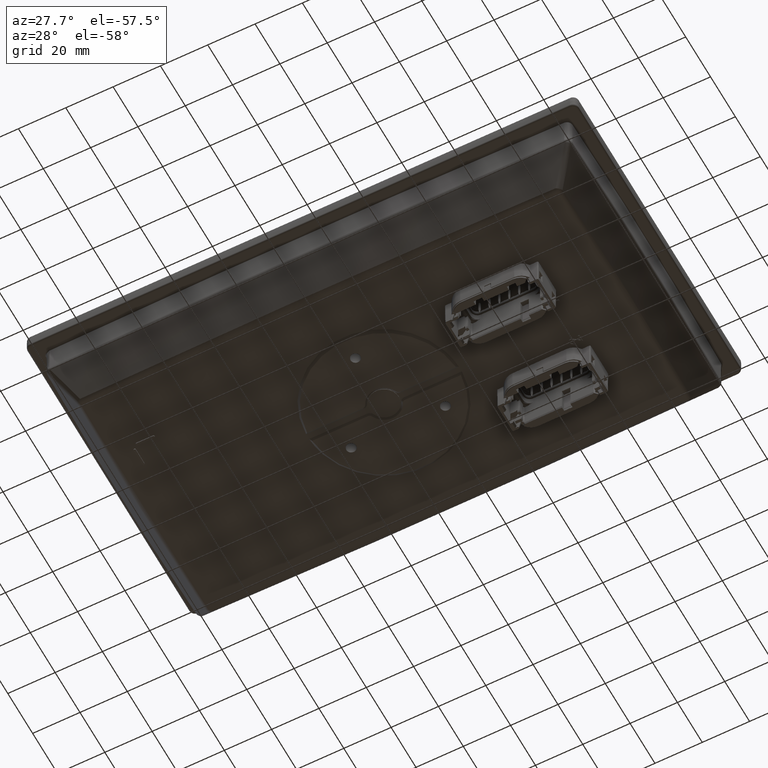
[diagram: clean part render]
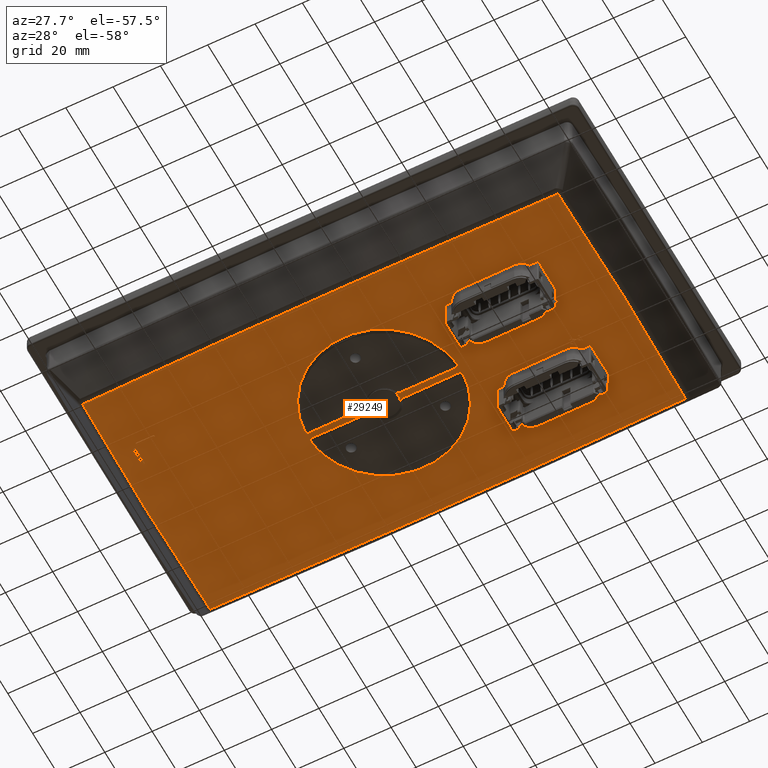
[diagram: same view with one face highlighted and labeled with its STEP entity id]
A machine part, auxiliary view. The second image highlights one B-rep face of the part: STEP entity #29249.
In plain terms, the highlighted face is a freeform B-spline surface patch.
Its self-contained STEP definition (entity closure, byte-faithful):
#8817=ORIENTED_EDGE('',*,*,#17583,.F.);
#8818=ORIENTED_EDGE('',*,*,#17584,.F.);
#8819=ORIENTED_EDGE('',*,*,#17585,.F.);
#8820=ORIENTED_EDGE('',*,*,#17586,.F.);
#8821=ORIENTED_EDGE('',*,*,#17587,.F.);
#8822=ORIENTED_EDGE('',*,*,#17588,.F.);
#8823=ORIENTED_EDGE('',*,*,#17589,.F.);
#8824=ORIENTED_EDGE('',*,*,#17590,.F.);
#8825=ORIENTED_EDGE('',*,*,#17591,.F.);
#8826=ORIENTED_EDGE('',*,*,#17592,.F.);
#8827=ORIENTED_EDGE('',*,*,#17593,.F.);
#8828=ORIENTED_EDGE('',*,*,#17594,.F.);
#8829=ORIENTED_EDGE('',*,*,#17595,.T.);
#8830=ORIENTED_EDGE('',*,*,#17596,.F.);
#8831=ORIENTED_EDGE('',*,*,#17597,.F.);
#8832=ORIENTED_EDGE('',*,*,#17598,.T.);
#8833=ORIENTED_EDGE('',*,*,#17599,.F.);
#8834=ORIENTED_EDGE('',*,*,#17600,.T.);
#8835=ORIENTED_EDGE('',*,*,#17601,.F.);
#8836=ORIENTED_EDGE('',*,*,#17602,.F.);
#8837=ORIENTED_EDGE('',*,*,#17603,.T.);
#8838=ORIENTED_EDGE('',*,*,#17604,.F.);
#8839=ORIENTED_EDGE('',*,*,#17605,.T.);
#8840=ORIENTED_EDGE('',*,*,#17606,.F.);
#8841=ORIENTED_EDGE('',*,*,#17607,.F.);
#8842=ORIENTED_EDGE('',*,*,#17608,.T.);
#8843=ORIENTED_EDGE('',*,*,#17609,.F.);
#8844=ORIENTED_EDGE('',*,*,#17610,.T.);
#8845=ORIENTED_EDGE('',*,*,#17611,.F.);
#8846=ORIENTED_EDGE('',*,*,#17612,.F.);
#8847=ORIENTED_EDGE('',*,*,#17613,.T.);
#8848=ORIENTED_EDGE('',*,*,#17614,.T.);
#8849=ORIENTED_EDGE('',*,*,#17615,.T.);
#8850=ORIENTED_EDGE('',*,*,#17616,.T.);
#8851=ORIENTED_EDGE('',*,*,#17617,.T.);
#8852=ORIENTED_EDGE('',*,*,#17618,.T.);
#8853=ORIENTED_EDGE('',*,*,#17619,.T.);
#8854=ORIENTED_EDGE('',*,*,#17620,.T.);
#8855=ORIENTED_EDGE('',*,*,#17621,.T.);
#8856=ORIENTED_EDGE('',*,*,#17622,.T.);
#8857=ORIENTED_EDGE('',*,*,#17623,.T.);
#8858=ORIENTED_EDGE('',*,*,#17624,.T.);
#8859=ORIENTED_EDGE('',*,*,#17625,.T.);
#8860=ORIENTED_EDGE('',*,*,#17626,.T.);
#8861=ORIENTED_EDGE('',*,*,#17627,.T.);
#8862=ORIENTED_EDGE('',*,*,#17628,.T.);
#8863=ORIENTED_EDGE('',*,*,#17629,.T.);
#8864=ORIENTED_EDGE('',*,*,#17630,.F.);
#8865=ORIENTED_EDGE('',*,*,#17631,.T.);
#8866=ORIENTED_EDGE('',*,*,#17632,.F.);
#8867=ORIENTED_EDGE('',*,*,#17633,.F.);
#8868=ORIENTED_EDGE('',*,*,#17634,.T.);
#8869=ORIENTED_EDGE('',*,*,#17635,.F.);
#8870=ORIENTED_EDGE('',*,*,#17636,.T.);
#8871=ORIENTED_EDGE('',*,*,#17637,.F.);
#8872=ORIENTED_EDGE('',*,*,#17638,.F.);
#8873=ORIENTED_EDGE('',*,*,#17639,.T.);
#8874=ORIENTED_EDGE('',*,*,#17640,.F.);
#8875=ORIENTED_EDGE('',*,*,#17641,.T.);
#8876=ORIENTED_EDGE('',*,*,#17642,.F.);
#8877=ORIENTED_EDGE('',*,*,#17643,.F.);
#8878=ORIENTED_EDGE('',*,*,#17644,.T.);
#8879=ORIENTED_EDGE('',*,*,#17645,.F.);
#8880=ORIENTED_EDGE('',*,*,#17646,.T.);
#8881=ORIENTED_EDGE('',*,*,#17647,.F.);
#8882=ORIENTED_EDGE('',*,*,#17648,.F.);
#8883=ORIENTED_EDGE('',*,*,#17649,.T.);
#8884=ORIENTED_EDGE('',*,*,#17650,.F.);
#8885=ORIENTED_EDGE('',*,*,#17651,.F.);
#8886=ORIENTED_EDGE('',*,*,#17652,.F.);
#8887=ORIENTED_EDGE('',*,*,#17653,.F.);
#8888=ORIENTED_EDGE('',*,*,#17654,.F.);
#8889=ORIENTED_EDGE('',*,*,#17655,.F.);
#8890=ORIENTED_EDGE('',*,*,#17656,.F.);
#8891=ORIENTED_EDGE('',*,*,#17657,.F.);
#8892=ORIENTED_EDGE('',*,*,#17658,.F.);
#8893=ORIENTED_EDGE('',*,*,#17659,.F.);
#8894=ORIENTED_EDGE('',*,*,#17660,.F.);
#8895=ORIENTED_EDGE('',*,*,#17661,.F.);
#8896=ORIENTED_EDGE('',*,*,#17662,.F.);
#17583=EDGE_CURVE('',#21966,#21967,#24763,.T.);
#17584=EDGE_CURVE('',#21968,#21966,#24764,.T.);
#17585=EDGE_CURVE('',#21969,#21968,#24765,.T.);
#17586=EDGE_CURVE('',#21967,#21969,#24766,.T.);
#17587=EDGE_CURVE('',#21970,#21971,#24767,.T.);
#17588=EDGE_CURVE('',#21972,#21970,#24768,.T.);
#17589=EDGE_CURVE('',#21973,#21972,#24769,.T.);
#17590=EDGE_CURVE('',#21974,#21973,#24770,.T.);
#17591=EDGE_CURVE('',#21975,#21974,#24771,.T.);
#17592=EDGE_CURVE('',#21976,#21975,#24772,.T.);
#17593=EDGE_CURVE('',#21971,#21976,#24773,.T.);
#17594=EDGE_CURVE('',#21977,#21978,#24774,.T.);
#17595=EDGE_CURVE('',#21977,#21979,#24775,.T.);
#17596=EDGE_CURVE('',#21980,#21979,#24776,.T.);
#17597=EDGE_CURVE('',#21981,#21980,#24777,.T.);
#17598=EDGE_CURVE('',#21981,#21982,#24778,.T.);
#17599=EDGE_CURVE('',#21983,#21982,#24779,.T.);
#17600=EDGE_CURVE('',#21983,#21984,#24780,.T.);
#17601=EDGE_CURVE('',#21985,#21984,#24781,.T.);
#17602=EDGE_CURVE('',#21986,#21985,#24782,.T.);
#17603=EDGE_CURVE('',#21986,#21987,#24783,.T.);
#17604=EDGE_CURVE('',#21988,#21987,#24784,.T.);
#17605=EDGE_CURVE('',#21988,#21989,#24785,.T.);
#17606=EDGE_CURVE('',#21990,#21989,#24786,.T.);
#17607=EDGE_CURVE('',#21991,#21990,#24787,.T.);
#17608=EDGE_CURVE('',#21991,#21992,#24788,.T.);
#17609=EDGE_CURVE('',#21993,#21992,#24789,.T.);
#17610=EDGE_CURVE('',#21993,#21994,#24790,.T.);
#17611=EDGE_CURVE('',#21995,#21994,#24791,.T.);
#17612=EDGE_CURVE('',#21996,#21995,#24792,.T.);
#17613=EDGE_CURVE('',#21996,#21978,#24793,.T.);
#17614=EDGE_CURVE('',#21997,#21998,#24794,.T.);
#17615=EDGE_CURVE('',#21998,#21999,#24795,.T.);
#17616=EDGE_CURVE('',#21999,#22000,#24796,.T.);
#17617=EDGE_CURVE('',#22000,#21997,#24797,.T.);
#17618=EDGE_CURVE('',#22001,#22002,#24798,.T.);
#17619=EDGE_CURVE('',#22002,#22003,#24799,.T.);
#17620=EDGE_CURVE('',#22003,#22004,#24800,.T.);
#17621=EDGE_CURVE('',#22004,#22005,#24801,.T.);
#17622=EDGE_CURVE('',#22005,#22006,#24802,.T.);
#17623=EDGE_CURVE('',#22006,#22001,#24803,.T.);
#17624=EDGE_CURVE('',#22007,#22008,#24804,.T.);
#17625=EDGE_CURVE('',#22008,#22009,#24805,.T.);
#17626=EDGE_CURVE('',#22009,#22010,#24806,.T.);
#17627=EDGE_CURVE('',#22010,#22011,#24807,.T.);
#17628=EDGE_CURVE('',#22011,#22012,#24808,.T.);
#17629=EDGE_CURVE('',#22012,#22007,#24809,.T.);
#17630=EDGE_CURVE('',#22013,#22014,#24810,.T.);
#17631=EDGE_CURVE('',#22013,#22015,#24811,.T.);
#17632=EDGE_CURVE('',#22016,#22015,#24812,.T.);
#17633=EDGE_CURVE('',#22017,#22016,#24813,.T.);
#17634=EDGE_CURVE('',#22017,#22018,#24814,.T.);
#17635=EDGE_CURVE('',#22019,#22018,#24815,.T.);
#17636=EDGE_CURVE('',#22019,#22020,#24816,.T.);
#17637=EDGE_CURVE('',#22021,#22020,#24817,.T.);
#17638=EDGE_CURVE('',#22022,#22021,#24818,.T.);
#17639=EDGE_CURVE('',#22022,#22023,#24819,.T.);
#17640=EDGE_CURVE('',#22024,#22023,#24820,.T.);
#17641=EDGE_CURVE('',#22024,#22025,#24821,.T.);
#17642=EDGE_CURVE('',#22026,#22025,#24822,.T.);
#17643=EDGE_CURVE('',#22027,#22026,#24823,.T.);
#17644=EDGE_CURVE('',#22027,#22028,#24824,.T.);
#17645=EDGE_CURVE('',#22029,#22028,#24825,.T.);
#17646=EDGE_CURVE('',#22029,#22030,#24826,.T.);
#17647=EDGE_CURVE('',#22031,#22030,#24827,.T.);
#17648=EDGE_CURVE('',#22032,#22031,#24828,.T.);
#17649=EDGE_CURVE('',#22032,#22014,#24829,.T.);
#17650=EDGE_CURVE('',#22033,#22034,#24830,.T.);
#17651=EDGE_CURVE('',#22035,#22033,#24831,.T.);
#17652=EDGE_CURVE('',#22036,#22035,#24832,.T.);
#17653=EDGE_CURVE('',#22037,#22036,#24833,.T.);
#17654=EDGE_CURVE('',#22038,#22037,#24834,.T.);
#17655=EDGE_CURVE('',#22039,#22038,#24835,.T.);
#17656=EDGE_CURVE('',#22040,#22039,#24836,.T.);
#17657=EDGE_CURVE('',#22041,#22040,#24837,.T.);
#17658=EDGE_CURVE('',#22034,#22041,#24838,.T.);
#17659=EDGE_CURVE('',#22042,#22043,#24839,.T.);
#17660=EDGE_CURVE('',#22044,#22042,#24840,.T.);
#17661=EDGE_CURVE('',#22045,#22044,#24841,.T.);
#17662=EDGE_CURVE('',#22043,#22045,#24842,.T.);
#21966=VERTEX_POINT('',#46737);
#21967=VERTEX_POINT('',#46738);
#21968=VERTEX_POINT('',#46746);
#21969=VERTEX_POINT('',#46751);
#21970=VERTEX_POINT('',#46763);
#21971=VERTEX_POINT('',#46764);
#21972=VERTEX_POINT('',#46769);
#21973=VERTEX_POINT('',#46774);
#21974=VERTEX_POINT('',#46779);
#21975=VERTEX_POINT('',#46784);
#21976=VERTEX_POINT('',#46789);
#21977=VERTEX_POINT('',#46798);
#21978=VERTEX_POINT('',#46799);
#21979=VERTEX_POINT('',#46804);
#21980=VERTEX_POINT('',#46809);
#21981=VERTEX_POINT('',#46814);
#21982=VERTEX_POINT('',#46819);
#21983=VERTEX_POINT('',#46824);
#21984=VERTEX_POINT('',#46829);
#21985=VERTEX_POINT('',#46834);
#21986=VERTEX_POINT('',#46839);
#21987=VERTEX_POINT('',#46844);
#21988=VERTEX_POINT('',#46849);
#21989=VERTEX_POINT('',#46855);
#21990=VERTEX_POINT('',#46860);
#21991=VERTEX_POINT('',#46865);
#21992=VERTEX_POINT('',#46870);
#21993=VERTEX_POINT('',#46875);
#21994=VERTEX_POINT('',#46880);
#21995=VERTEX_POINT('',#46885);
#21996=VERTEX_POINT('',#46890);
#21997=VERTEX_POINT('',#46901);
#21998=VERTEX_POINT('',#46902);
#21999=VERTEX_POINT('',#46908);
#22000=VERTEX_POINT('',#46913);
#22001=VERTEX_POINT('',#46946);
#22002=VERTEX_POINT('',#46947);
#22003=VERTEX_POINT('',#46952);
#22004=VERTEX_POINT('',#46957);
#22005=VERTEX_POINT('',#46965);
#22006=VERTEX_POINT('',#46970);
#22007=VERTEX_POINT('',#47002);
#22008=VERTEX_POINT('',#47003);
#22009=VERTEX_POINT('',#47008);
#22010=VERTEX_POINT('',#47013);
#22011=VERTEX_POINT('',#47021);
#22012=VERTEX_POINT('',#47026);
#22013=VERTEX_POINT('',#47035);
#22014=VERTEX_POINT('',#47036);
#22015=VERTEX_POINT('',#47041);
#22016=VERTEX_POINT('',#47046);
#22017=VERTEX_POINT('',#47051);
#22018=VERTEX_POINT('',#47056);
#22019=VERTEX_POINT('',#47061);
#22020=VERTEX_POINT('',#47066);
#22021=VERTEX_POINT('',#47071);
#22022=VERTEX_POINT('',#47076);
#22023=VERTEX_POINT('',#47081);
#22024=VERTEX_POINT('',#47086);
#22025=VERTEX_POINT('',#47092);
#22026=VERTEX_POINT('',#47097);
#22027=VERTEX_POINT('',#47102);
#22028=VERTEX_POINT('',#47107);
#22029=VERTEX_POINT('',#47112);
#22030=VERTEX_POINT('',#47117);
#22031=VERTEX_POINT('',#47122);
#22032=VERTEX_POINT('',#47127);
#22033=VERTEX_POINT('',#47137);
#22034=VERTEX_POINT('',#47138);
#22035=VERTEX_POINT('',#47143);
#22036=VERTEX_POINT('',#47148);
#22037=VERTEX_POINT('',#47153);
#22038=VERTEX_POINT('',#47164);
#22039=VERTEX_POINT('',#47172);
#22040=VERTEX_POINT('',#47177);
#22041=VERTEX_POINT('',#47189);
#22042=VERTEX_POINT('',#47198);
#22043=VERTEX_POINT('',#47199);
#22044=VERTEX_POINT('',#47207);
#22045=VERTEX_POINT('',#47212);
#24763=B_SPLINE_CURVE_WITH_KNOTS('',3,(#46733,#46734,#46735,#46736),
 .UNSPECIFIED.,.F.,.F.,(4,4),(0.,0.00700046157236702),.UNSPECIFIED.);
#24764=B_SPLINE_CURVE_WITH_KNOTS('',3,(#46739,#46740,#46741,#46742,#46743,
#46744,#46745),.UNSPECIFIED.,.F.,.F.,(4,1,1,1,4),(0.,0.00039074228489463,
0.00078148456978926,0.00117222685468389,0.00156296913957852),
 .UNSPECIFIED.);
#24765=B_SPLINE_CURVE_WITH_KNOTS('',3,(#46747,#46748,#46749,#46750),
 .UNSPECIFIED.,.F.,.F.,(4,4),(0.,0.00700043351340438),.UNSPECIFIED.);
#24766=B_SPLINE_CURVE_WITH_KNOTS('',3,(#46752,#46753,#46754,#46755,#46756,
#46757,#46758),.UNSPECIFIED.,.F.,.F.,(4,1,1,1,4),(7.07631108375459E-17,
0.00039074408361316,0.000781488167226249,0.00117223225083934,0.00156297633445243),
 .UNSPECIFIED.);
#24767=B_SPLINE_CURVE_WITH_KNOTS('',3,(#46759,#46760,#46761,#46762),
 .UNSPECIFIED.,.F.,.F.,(4,4),(0.000139429580321658,0.000681440868292101),
 .UNSPECIFIED.);
#24768=B_SPLINE_CURVE_WITH_KNOTS('',3,(#46765,#46766,#46767,#46768),
 .UNSPECIFIED.,.F.,.F.,(4,4),(0.000161109034203266,0.00626040191048859),
 .UNSPECIFIED.);
#24769=B_SPLINE_CURVE_WITH_KNOTS('',3,(#46770,#46771,#46772,#46773),
 .UNSPECIFIED.,.F.,.F.,(4,4),(0.000127285010391995,0.0008011324317906),
 .UNSPECIFIED.);
#24770=B_SPLINE_CURVE_WITH_KNOTS('',3,(#46775,#46776,#46777,#46778),
 .UNSPECIFIED.,.F.,.F.,(4,4),(0.000156879074528826,0.00505858154721929),
 .UNSPECIFIED.);
#24771=B_SPLINE_CURVE_WITH_KNOTS('',3,(#46780,#46781,#46782,#46783),
 .UNSPECIFIED.,.F.,.F.,(4,4),(7.05195319415075E-5,0.000992630532743507),
 .UNSPECIFIED.);
#24772=B_SPLINE_CURVE_WITH_KNOTS('',3,(#46785,#46786,#46787,#46788),
 .UNSPECIFIED.,.F.,.F.,(4,4),(0.000272873883612643,0.00105918730988085),
 .UNSPECIFIED.);
#24773=B_SPLINE_CURVE_WITH_KNOTS('',3,(#46790,#46791,#46792,#46793),
 .UNSPECIFIED.,.F.,.F.,(4,4),(8.36490777980353E-5,0.00249272584347447),
 .UNSPECIFIED.);
#24774=B_SPLINE_CURVE_WITH_KNOTS('',3,(#46794,#46795,#46796,#46797),
 .UNSPECIFIED.,.F.,.F.,(4,4),(0.000136454165744383,0.0228707052659549),
 .UNSPECIFIED.);
#24775=B_SPLINE_CURVE_WITH_KNOTS('',3,(#46800,#46801,#46802,#46803),
 .UNSPECIFIED.,.F.,.F.,(4,4),(3.45781928403566E-5,0.00580823850344006),
 .UNSPECIFIED.);
#24776=B_SPLINE_CURVE_WITH_KNOTS('',3,(#46805,#46806,#46807,#46808),
 .UNSPECIFIED.,.F.,.F.,(4,4),(2.58185554036518E-6,0.000433977666968993),
 .UNSPECIFIED.);
#24777=B_SPLINE_CURVE_WITH_KNOTS('',3,(#46810,#46811,#46812,#46813),
 .UNSPECIFIED.,.F.,.F.,(4,4),(6.5929573942288E-5,0.00292472840048159),
 .UNSPECIFIED.);
#24778=B_SPLINE_CURVE_WITH_KNOTS('',3,(#46815,#46816,#46817,#46818),
 .UNSPECIFIED.,.F.,.F.,(4,4),(0.,0.000793623792607927),.UNSPECIFIED.);
#24779=B_SPLINE_CURVE_WITH_KNOTS('',3,(#46820,#46821,#46822,#46823),
 .UNSPECIFIED.,.F.,.F.,(4,4),(4.27510556405676E-5,0.0139084010878546),
 .UNSPECIFIED.);
#24780=B_SPLINE_CURVE_WITH_KNOTS('',3,(#46825,#46826,#46827,#46828),
 .UNSPECIFIED.,.F.,.F.,(4,4),(0.,0.000793586116186368),.UNSPECIFIED.);
#24781=B_SPLINE_CURVE_WITH_KNOTS('',3,(#46830,#46831,#46832,#46833),
 .UNSPECIFIED.,.F.,.F.,(4,4),(0.000819896769891478,0.0036789962265498),
 .UNSPECIFIED.);
#24782=B_SPLINE_CURVE_WITH_KNOTS('',3,(#46835,#46836,#46837,#46838),
 .UNSPECIFIED.,.F.,.F.,(4,4),(1.55158384577955E-17,0.000431102160530636),
 .UNSPECIFIED.);
#24783=B_SPLINE_CURVE_WITH_KNOTS('',3,(#46840,#46841,#46842,#46843),
 .UNSPECIFIED.,.F.,.F.,(4,4),(6.91041401865081E-5,0.00584221494710984),
 .UNSPECIFIED.);
#24784=B_SPLINE_CURVE_WITH_KNOTS('',3,(#46845,#46846,#46847,#46848),
 .UNSPECIFIED.,.F.,.F.,(4,4),(3.02681712410933E-14,0.0227335325331561),
 .UNSPECIFIED.);
#24785=B_SPLINE_CURVE_WITH_KNOTS('',3,(#46850,#46851,#46852,#46853,#46854),
 .UNSPECIFIED.,.F.,.F.,(4,1,4),(0.,0.00343258901648574,0.00686517803297148),
 .UNSPECIFIED.);
#24786=B_SPLINE_CURVE_WITH_KNOTS('',3,(#46856,#46857,#46858,#46859),
 .UNSPECIFIED.,.F.,.F.,(4,4),(1.4304896245382E-17,0.000512866802502407),
 .UNSPECIFIED.);
#24787=B_SPLINE_CURVE_WITH_KNOTS('',3,(#46861,#46862,#46863,#46864),
 .UNSPECIFIED.,.F.,.F.,(4,4),(6.4031076891987E-5,0.00232305323220477),
 .UNSPECIFIED.);
#24788=B_SPLINE_CURVE_WITH_KNOTS('',3,(#46866,#46867,#46868,#46869),
 .UNSPECIFIED.,.F.,.F.,(4,4),(6.93889390390723E-18,0.000793661105440567),
 .UNSPECIFIED.);
#24789=B_SPLINE_CURVE_WITH_KNOTS('',3,(#46871,#46872,#46873,#46874),
 .UNSPECIFIED.,.F.,.F.,(4,4),(4.71792448820466E-5,0.0118754585910891),
 .UNSPECIFIED.);
#24790=B_SPLINE_CURVE_WITH_KNOTS('',3,(#46876,#46877,#46878,#46879),
 .UNSPECIFIED.,.F.,.F.,(4,4),(3.02956430716042E-17,0.000793542348910446),
 .UNSPECIFIED.);
#24791=B_SPLINE_CURVE_WITH_KNOTS('',3,(#46881,#46882,#46883,#46884),
 .UNSPECIFIED.,.F.,.F.,(4,4),(0.000802807930684593,0.00306120310838484),
 .UNSPECIFIED.);
#24792=B_SPLINE_CURVE_WITH_KNOTS('',3,(#46886,#46887,#46888,#46889),
 .UNSPECIFIED.,.F.,.F.,(4,4),(1.73472347597681E-18,0.000512889816492095),
 .UNSPECIFIED.);
#24793=B_SPLINE_CURVE_WITH_KNOTS('',3,(#46891,#46892,#46893,#46894,#46895),
 .UNSPECIFIED.,.F.,.F.,(4,1,4),(8.1307202699426E-5,0.00351291556899228,
0.00694452393528514),.UNSPECIFIED.);
#24794=B_SPLINE_CURVE_WITH_KNOTS('',3,(#46896,#46897,#46898,#46899,#46900),
 .UNSPECIFIED.,.F.,.F.,(4,1,4),(1.38777878078145E-17,0.100451379599042,
0.200902759198085),.UNSPECIFIED.);
#24795=B_SPLINE_CURVE_WITH_KNOTS('',3,(#46903,#46904,#46905,#46906,#46907),
 .UNSPECIFIED.,.F.,.F.,(4,1,4),(0.,0.0513223311844414,0.102644662368883),
 .UNSPECIFIED.);
#24796=B_SPLINE_CURVE_WITH_KNOTS('',3,(#46909,#46910,#46911,#46912),
 .UNSPECIFIED.,.F.,.F.,(4,4),(0.,0.200902632407784),.UNSPECIFIED.);
#24797=B_SPLINE_CURVE_WITH_KNOTS('',3,(#46914,#46915,#46916,#46917,#46918),
 .UNSPECIFIED.,.F.,.F.,(4,1,4),(0.,0.0513223408673153,0.102644681734631),
 .UNSPECIFIED.);
#24798=B_SPLINE_CURVE_WITH_KNOTS('',3,(#46919,#46920,#46921,#46922,#46923,
#46924,#46925,#46926,#46927,#46928,#46929,#46930,#46931,#46932,#46933,#46934,
#46935,#46936,#46937,#46938,#46939,#46940,#46941,#46942,#46943,#46944,#46945),
 .UNSPECIFIED.,.F.,.F.,(4,1,1,1,1,1,1,1,1,1,1,1,1,1,1,1,1,1,1,1,1,1,1,1,
4),(0.0378575996082481,0.0440749192164484,0.0502922388246488,0.0565095584328492,
0.0627268780410495,0.0658355378451497,0.0689441976492499,0.0720528574533501,
0.0751615172574502,0.0782701770615504,0.0813788368656506,0.0844874966697508,
0.087596156473851,0.0938134760820513,0.100030795690252,0.106248115298452,
0.109356775102552,0.112465434906652,0.115574094710753,0.118682754514853,
0.121791414318953,0.124900074123053,0.128008733927153,0.131117393731253,
0.137334713339454),.UNSPECIFIED.);
#24799=B_SPLINE_CURVE_WITH_KNOTS('',3,(#46948,#46949,#46950,#46951),
 .UNSPECIFIED.,.F.,.F.,(4,4),(0.0714285175116426,0.0958564003286109),
 .UNSPECIFIED.);
#24800=B_SPLINE_CURVE_WITH_KNOTS('',3,(#46953,#46954,#46955,#46956),
 .UNSPECIFIED.,.F.,.F.,(4,4),(0.,0.00252330666776628),.UNSPECIFIED.);
#24801=B_SPLINE_CURVE_WITH_KNOTS('',3,(#46958,#46959,#46960,#46961,#46962,
#46963,#46964),.UNSPECIFIED.,.F.,.F.,(4,1,1,1,4),(3.87895961444886E-18,
0.00367121211489339,0.00734242422978677,0.0110136363446802,0.0146848484595735),
 .UNSPECIFIED.);
#24802=B_SPLINE_CURVE_WITH_KNOTS('',3,(#46966,#46967,#46968,#46969),
 .UNSPECIFIED.,.F.,.F.,(4,4),(2.77691248356771E-18,0.0025253693195528),
 .UNSPECIFIED.);
#24803=B_SPLINE_CURVE_WITH_KNOTS('',3,(#46971,#46972,#46973,#46974),
 .UNSPECIFIED.,.F.,.F.,(4,4),(0.,0.0244279119653461),.UNSPECIFIED.);
#24804=B_SPLINE_CURVE_WITH_KNOTS('',3,(#46975,#46976,#46977,#46978,#46979,
#46980,#46981,#46982,#46983,#46984,#46985,#46986,#46987,#46988,#46989,#46990,
#46991,#46992,#46993,#46994,#46995,#46996,#46997,#46998,#46999,#47000,#47001),
 .UNSPECIFIED.,.F.,.F.,(4,1,1,1,1,1,1,1,1,1,1,1,1,1,1,1,1,1,1,1,1,1,1,1,
4),(0.0378576060948404,0.0440749261834096,0.0502922462719788,0.056509566360548,
0.0627268864491172,0.0658355464934018,0.0689442065376864,0.072052866581971,
0.0751615266262556,0.0782701866705402,0.0813788467148248,0.0844875067591094,
0.087596166803394,0.0938134868919632,0.100030806980532,0.106248127069102,
0.109356787113386,0.112465447157671,0.115574107201955,0.11868276724624,
0.121791427290525,0.124900087334809,0.128008747379094,0.131117407423378,
0.137334727511948),.UNSPECIFIED.);
#24805=B_SPLINE_CURVE_WITH_KNOTS('',3,(#47004,#47005,#47006,#47007),
 .UNSPECIFIED.,.F.,.F.,(4,4),(0.0714284863233696,0.0958563985873166),
 .UNSPECIFIED.);
#24806=B_SPLINE_CURVE_WITH_KNOTS('',3,(#47009,#47010,#47011,#47012),
 .UNSPECIFIED.,.F.,.F.,(4,4),(0.,0.0025233100206514),.UNSPECIFIED.);
#24807=B_SPLINE_CURVE_WITH_KNOTS('',3,(#47014,#47015,#47016,#47017,#47018,
#47019,#47020),.UNSPECIFIED.,.F.,.F.,(4,1,1,1,4),(8.67361737988404E-19,
0.00367121183013972,0.00734242366027944,0.0110136354904192,0.0146848473205589),
 .UNSPECIFIED.);
#24808=B_SPLINE_CURVE_WITH_KNOTS('',3,(#47022,#47023,#47024,#47025),
 .UNSPECIFIED.,.F.,.F.,(4,4),(1.6734687751491E-17,0.00252536640760492),
 .UNSPECIFIED.);
#24809=B_SPLINE_CURVE_WITH_KNOTS('',3,(#47027,#47028,#47029,#47030),
 .UNSPECIFIED.,.F.,.F.,(4,4),(0.,0.0244278831619799),.UNSPECIFIED.);
#24810=B_SPLINE_CURVE_WITH_KNOTS('',3,(#47031,#47032,#47033,#47034),
 .UNSPECIFIED.,.F.,.F.,(4,4),(0.00013644861604902,0.0228699035179982),
 .UNSPECIFIED.);
#24811=B_SPLINE_CURVE_WITH_KNOTS('',3,(#47037,#47038,#47039,#47040),
 .UNSPECIFIED.,.F.,.F.,(4,4),(3.4584949272747E-5,0.00580858812371497),
 .UNSPECIFIED.);
#24812=B_SPLINE_CURVE_WITH_KNOTS('',3,(#47042,#47043,#47044,#47045),
 .UNSPECIFIED.,.F.,.F.,(4,4),(2.58170419914257E-6,0.000433906630109366),
 .UNSPECIFIED.);
#24813=B_SPLINE_CURVE_WITH_KNOTS('',3,(#47047,#47048,#47049,#47050),
 .UNSPECIFIED.,.F.,.F.,(4,4),(6.49541422058485E-5,0.00292404667851066),
 .UNSPECIFIED.);
#24814=B_SPLINE_CURVE_WITH_KNOTS('',3,(#47052,#47053,#47054,#47055),
 .UNSPECIFIED.,.F.,.F.,(4,4),(0.,0.000793586130476496),.UNSPECIFIED.);
#24815=B_SPLINE_CURVE_WITH_KNOTS('',3,(#47057,#47058,#47059,#47060),
 .UNSPECIFIED.,.F.,.F.,(4,4),(4.36412568913202E-5,0.0139092916435632),
 .UNSPECIFIED.);
#24816=B_SPLINE_CURVE_WITH_KNOTS('',3,(#47062,#47063,#47064,#47065),
 .UNSPECIFIED.,.F.,.F.,(4,4),(0.,0.000793623651586577),.UNSPECIFIED.);
#24817=B_SPLINE_CURVE_WITH_KNOTS('',3,(#47067,#47068,#47069,#47070),
 .UNSPECIFIED.,.F.,.F.,(4,4),(0.000819383356053587,0.00367818845502692),
 .UNSPECIFIED.);
#24818=B_SPLINE_CURVE_WITH_KNOTS('',3,(#47072,#47073,#47074,#47075),
 .UNSPECIFIED.,.F.,.F.,(4,4),(1.73472347597681E-18,0.000431173778014877),
 .UNSPECIFIED.);
#24819=B_SPLINE_CURVE_WITH_KNOTS('',3,(#47077,#47078,#47079,#47080),
 .UNSPECIFIED.,.F.,.F.,(4,4),(6.85743794914571E-5,0.00584134246907246),
 .UNSPECIFIED.);
#24820=B_SPLINE_CURVE_WITH_KNOTS('',3,(#47082,#47083,#47084,#47085),
 .UNSPECIFIED.,.F.,.F.,(4,4),(3.02622738597904E-14,0.022734326698895),
 .UNSPECIFIED.);
#24821=B_SPLINE_CURVE_WITH_KNOTS('',3,(#47087,#47088,#47089,#47090,#47091),
 .UNSPECIFIED.,.F.,.F.,(4,1,4),(0.,0.00343153865374445,0.00686307730748891),
 .UNSPECIFIED.);
#24822=B_SPLINE_CURVE_WITH_KNOTS('',3,(#47093,#47094,#47095,#47096),
 .UNSPECIFIED.,.F.,.F.,(4,4),(7.152448122691E-18,0.000512884229787236),
 .UNSPECIFIED.);
#24823=B_SPLINE_CURVE_WITH_KNOTS('',3,(#47098,#47099,#47100,#47101),
 .UNSPECIFIED.,.F.,.F.,(4,4),(6.57382582469345E-5,0.0023241367295282),
 .UNSPECIFIED.);
#24824=B_SPLINE_CURVE_WITH_KNOTS('',3,(#47103,#47104,#47105,#47106),
 .UNSPECIFIED.,.F.,.F.,(4,4),(2.82392522492689E-17,0.000793542346980646),
 .UNSPECIFIED.);
#24825=B_SPLINE_CURVE_WITH_KNOTS('',3,(#47108,#47109,#47110,#47111),
 .UNSPECIFIED.,.F.,.F.,(4,4),(4.56027779569922E-5,0.011873882239738),
 .UNSPECIFIED.);
#24826=B_SPLINE_CURVE_WITH_KNOTS('',3,(#47113,#47114,#47115,#47116),
 .UNSPECIFIED.,.F.,.F.,(4,4),(2.8609792490764E-17,0.000793661304203848),
 .UNSPECIFIED.);
#24827=B_SPLINE_CURVE_WITH_KNOTS('',3,(#47118,#47119,#47120,#47121),
 .UNSPECIFIED.,.F.,.F.,(4,4),(0.000803856850966459,0.00306287574832667),
 .UNSPECIFIED.);
#24828=B_SPLINE_CURVE_WITH_KNOTS('',3,(#47123,#47124,#47125,#47126),
 .UNSPECIFIED.,.F.,.F.,(4,4),(1.2509268882771E-17,0.00051287532524816),
 .UNSPECIFIED.);
#24829=B_SPLINE_CURVE_WITH_KNOTS('',3,(#47128,#47129,#47130,#47131,#47132),
 .UNSPECIFIED.,.F.,.F.,(4,1,4),(8.23502862307343E-5,0.00351502102435396,
0.00694769176247718),.UNSPECIFIED.);
#24830=B_SPLINE_CURVE_WITH_KNOTS('',3,(#47133,#47134,#47135,#47136),
 .UNSPECIFIED.,.F.,.F.,(4,4),(0.000138004034538241,0.00215928731138299),
 .UNSPECIFIED.);
#24831=B_SPLINE_CURVE_WITH_KNOTS('',3,(#47139,#47140,#47141,#47142),
 .UNSPECIFIED.,.F.,.F.,(4,4),(0.000127958718565223,0.000689317121732657),
 .UNSPECIFIED.);
#24832=B_SPLINE_CURVE_WITH_KNOTS('',3,(#47144,#47145,#47146,#47147),
 .UNSPECIFIED.,.F.,.F.,(4,4),(0.000141370824795224,0.00290548672586831),
 .UNSPECIFIED.);
#24833=B_SPLINE_CURVE_WITH_KNOTS('',3,(#47149,#47150,#47151,#47152),
 .UNSPECIFIED.,.F.,.F.,(4,4),(4.27147892637885E-5,0.000530036775425327),
 .UNSPECIFIED.);
#24834=B_SPLINE_CURVE_WITH_KNOTS('',3,(#47154,#47155,#47156,#47157,#47158,
#47159,#47160,#47161,#47162,#47163),.UNSPECIFIED.,.F.,.F.,(4,1,1,1,1,1,
1,4),(4.7368532451067E-6,0.00056990440028095,0.000852488173798872,0.00113507194731679,
0.00170023949435264,0.00226540704138848,0.00339574213546017,0.00452607722953186),
 .UNSPECIFIED.);
#24835=B_SPLINE_CURVE_WITH_KNOTS('',3,(#47165,#47166,#47167,#47168,#47169,
#47170,#47171),.UNSPECIFIED.,.F.,.F.,(4,1,1,1,4),(0.00012389910400775,0.000604293452764901,
0.00108468780152205,0.0015650821502792,0.00204547649903635),
 .UNSPECIFIED.);
#24836=B_SPLINE_CURVE_WITH_KNOTS('',3,(#47173,#47174,#47175,#47176),
 .UNSPECIFIED.,.F.,.F.,(4,4),(0.000166745341122375,0.000714823347655368),
 .UNSPECIFIED.);
#24837=B_SPLINE_CURVE_WITH_KNOTS('',3,(#47178,#47179,#47180,#47181,#47182,
#47183,#47184,#47185,#47186,#47187,#47188),.UNSPECIFIED.,.F.,.F.,(4,1,1,
1,1,1,1,1,4),(3.46503369467611E-5,0.000628120140713875,0.00122158994448099,
0.0018150597482481,0.00240852955201522,0.00300199935578233,0.00359546915954945,
0.00418893896331656,0.00478240876708368),.UNSPECIFIED.);
#24838=B_SPLINE_CURVE_WITH_KNOTS('',3,(#47190,#47191,#47192,#47193),
 .UNSPECIFIED.,.F.,.F.,(4,4),(0.000120916521725537,0.00338547780210797),
 .UNSPECIFIED.);
#24839=B_SPLINE_CURVE_WITH_KNOTS('',3,(#47194,#47195,#47196,#47197),
 .UNSPECIFIED.,.F.,.F.,(4,4),(0.,0.00700004453947891),.UNSPECIFIED.);
#24840=B_SPLINE_CURVE_WITH_KNOTS('',3,(#47200,#47201,#47202,#47203,#47204,
#47205,#47206),.UNSPECIFIED.,.F.,.F.,(4,1,1,1,4),(0.,0.000390743734917681,
0.000781487469835361,0.00117223120475304,0.00156297493967072),
 .UNSPECIFIED.);
#24841=B_SPLINE_CURVE_WITH_KNOTS('',3,(#47208,#47209,#47210,#47211),
 .UNSPECIFIED.,.F.,.F.,(4,4),(0.,0.00700005322808266),.UNSPECIFIED.);
#24842=B_SPLINE_CURVE_WITH_KNOTS('',3,(#47213,#47214,#47215,#47216,#47217,
#47218,#47219),.UNSPECIFIED.,.F.,.F.,(4,1,1,1,4),(1.73472347597681E-17,
0.000390750029499067,0.000781500058998116,0.00117225008849717,0.00156300011799622),
 .UNSPECIFIED.);
#25212=EDGE_LOOP('',(#8817,#8818,#8819,#8820));
#25213=EDGE_LOOP('',(#8821,#8822,#8823,#8824,#8825,#8826,#8827));
#25214=EDGE_LOOP('',(#8828,#8829,#8830,#8831,#8832,#8833,#8834,#8835,#8836,
#8837,#8838,#8839,#8840,#8841,#8842,#8843,#8844,#8845,#8846,#8847));
#25215=EDGE_LOOP('',(#8848,#8849,#8850,#8851));
#25216=EDGE_LOOP('',(#8852,#8853,#8854,#8855,#8856,#8857));
#25217=EDGE_LOOP('',(#8858,#8859,#8860,#8861,#8862,#8863));
#25218=EDGE_LOOP('',(#8864,#8865,#8866,#8867,#8868,#8869,#8870,#8871,#8872,
#8873,#8874,#8875,#8876,#8877,#8878,#8879,#8880,#8881,#8882,#8883));
#25219=EDGE_LOOP('',(#8884,#8885,#8886,#8887,#8888,#8889,#8890,#8891,#8892));
#25220=EDGE_LOOP('',(#8893,#8894,#8895,#8896));
#27208=FACE_BOUND('',#25212,.T.);
#27209=FACE_BOUND('',#25213,.T.);
#27210=FACE_BOUND('',#25214,.T.);
#27211=FACE_BOUND('',#25215,.T.);
#27212=FACE_BOUND('',#25216,.T.);
#27213=FACE_BOUND('',#25217,.T.);
#27214=FACE_BOUND('',#25218,.T.);
#27215=FACE_BOUND('',#25219,.T.);
#27216=FACE_BOUND('',#25220,.T.);
#29204=B_SPLINE_SURFACE_WITH_KNOTS('',3,3,((#46495,#46496,#46497,#46498,
#46499,#46500,#46501),(#46502,#46503,#46504,#46505,#46506,#46507,#46508),
(#46509,#46510,#46511,#46512,#46513,#46514,#46515),(#46516,#46517,#46518,
#46519,#46520,#46521,#46522),(#46523,#46524,#46525,#46526,#46527,#46528,
#46529),(#46530,#46531,#46532,#46533,#46534,#46535,#46536),(#46537,#46538,
#46539,#46540,#46541,#46542,#46543),(#46544,#46545,#46546,#46547,#46548,
#46549,#46550),(#46551,#46552,#46553,#46554,#46555,#46556,#46557),(#46558,
#46559,#46560,#46561,#46562,#46563,#46564),(#46565,#46566,#46567,#46568,
#46569,#46570,#46571),(#46572,#46573,#46574,#46575,#46576,#46577,#46578),
(#46579,#46580,#46581,#46582,#46583,#46584,#46585),(#46586,#46587,#46588,
#46589,#46590,#46591,#46592),(#46593,#46594,#46595,#46596,#46597,#46598,
#46599),(#46600,#46601,#46602,#46603,#46604,#46605,#46606),(#46607,#46608,
#46609,#46610,#46611,#46612,#46613),(#46614,#46615,#46616,#46617,#46618,
#46619,#46620),(#46621,#46622,#46623,#46624,#46625,#46626,#46627),(#46628,
#46629,#46630,#46631,#46632,#46633,#46634),(#46635,#46636,#46637,#46638,
#46639,#46640,#46641),(#46642,#46643,#46644,#46645,#46646,#46647,#46648),
(#46649,#46650,#46651,#46652,#46653,#46654,#46655),(#46656,#46657,#46658,
#46659,#46660,#46661,#46662),(#46663,#46664,#46665,#46666,#46667,#46668,
#46669),(#46670,#46671,#46672,#46673,#46674,#46675,#46676),(#46677,#46678,
#46679,#46680,#46681,#46682,#46683),(#46684,#46685,#46686,#46687,#46688,
#46689,#46690),(#46691,#46692,#46693,#46694,#46695,#46696,#46697),(#46698,
#46699,#46700,#46701,#46702,#46703,#46704),(#46705,#46706,#46707,#46708,
#46709,#46710,#46711),(#46712,#46713,#46714,#46715,#46716,#46717,#46718),
(#46719,#46720,#46721,#46722,#46723,#46724,#46725),(#46726,#46727,#46728,
#46729,#46730,#46731,#46732)),.UNSPECIFIED.,.F.,.F.,.F.,(4,1,1,1,1,1,1,
1,1,1,1,1,1,1,1,1,1,1,1,1,1,1,1,1,1,1,1,1,1,1,1,4),(4,1,1,1,4),(-0.10230503502401,
-0.101587410803079,-0.100786904355764,-0.0991858914611328,-0.0975848785665017,
-0.0967843721191862,-0.0959838656718706,-0.0943828527772396,-0.0927818398826085,
-0.0911808269879774,-0.0895798140933463,-0.0879788011987152,-0.0863777883040841,
-0.0831757625148219,-0.0767717109362975,-0.0639636077792487,-0.0511555046222,
-0.0255392983081024,7.69080059951216E-5,0.0256931143200927,0.0385012174771414,
0.0513093206341902,0.064117423791239,0.0705214753697634,0.0769255269482877,
0.0833295785268121,0.0865316043160743,0.0897336301053365,0.0929356558945987,
0.0961376816838609,0.0993397074731231,0.102458852603963),(-0.0528181229178941,
-0.0267321387317646,-2.01821240275457E-10,0.0267321383281221,0.0528181216849641),
 .UNSPECIFIED.);
#29249=ADVANCED_FACE('',(#27208,#27209,#27210,#27211,#27212,#27213,#27214,
#27215,#27216),#29204,.T.);
#46495=CARTESIAN_POINT('',(102.380993374513,-52.8187290408532,-32.5995447219975));
#46496=CARTESIAN_POINT('',(102.381303253593,-44.1231376235063,-32.5976348824085));
#46497=CARTESIAN_POINT('',(102.381233654687,-26.5168427560984,-32.5977791922429));
#46498=CARTESIAN_POINT('',(102.380771358804,-0.000270141078357403,-32.6039759179684));
#46499=CARTESIAN_POINT('',(102.381374150532,26.5163060909072,-32.5977505536687));
#46500=CARTESIAN_POINT('',(102.381526888783,44.122603400854,-32.5976865595382));
#46501=CARTESIAN_POINT('',(102.381254689287,52.8181928681534,-32.5994456849744));
#46502=CARTESIAN_POINT('',(102.141779568575,-52.8187277186739,-32.5996299962129));
#46503=CARTESIAN_POINT('',(102.142091959394,-44.1231370556908,-32.5986510632004));
#46504=CARTESIAN_POINT('',(102.142037337796,-26.5168420117398,-32.6007580087626));
#46505=CARTESIAN_POINT('',(102.141602612177,-0.000269494559855116,-32.6093202106275));
#46506=CARTESIAN_POINT('',(102.142177799802,26.5163066409898,-32.6007299227998));
#46507=CARTESIAN_POINT('',(102.142315615681,44.122604136755,-32.5987029533636));
#46508=CARTESIAN_POINT('',(102.142040997797,52.8181928913909,-32.599537305097));
#46509=CARTESIAN_POINT('',(101.635723867229,-52.8187249180596,-32.5998043068979));
#46510=CARTESIAN_POINT('',(101.636041592305,-44.1231358672722,-32.6008053498481));
#46511=CARTESIAN_POINT('',(101.636018635985,-26.5168404293348,-32.6070575168886));
#46512=CARTESIAN_POINT('',(101.635642260902,-0.00026812697418862,-32.6206271583774));
#46513=CARTESIAN_POINT('',(101.636159026695,26.5163077972217,-32.6070306094318));
#46514=CARTESIAN_POINT('',(101.636265292975,44.1226057060552,-32.6008576958421));
#46515=CARTESIAN_POINT('',(101.635985538786,52.8181929371583,-32.5997250475046));
#46516=CARTESIAN_POINT('',(100.595983497903,-52.8187189869913,-32.5999808351313));
#46517=CARTESIAN_POINT('',(100.596313789425,-44.1231335313677,-32.605343192829));
#46518=CARTESIAN_POINT('',(100.596354692636,-26.5168370959344,-32.6199365996984));
#46519=CARTESIAN_POINT('',(100.596098388406,-0.000265320942934269,-32.6438729564795));
#46520=CARTESIAN_POINT('',(100.596494952841,26.5163100985085,-32.619913335024));
#46521=CARTESIAN_POINT('',(100.596537550398,44.1226090262055,-32.6053941567659));
#46522=CARTESIAN_POINT('',(100.596245693122,52.818192863724,-32.5999308331732));
#46523=CARTESIAN_POINT('',(99.2617720766993,-52.8187104551747,-32.5999761398169));
#46524=CARTESIAN_POINT('',(99.2621205068348,-44.1231304628656,-32.6112752266891));
#46525=CARTESIAN_POINT('',(99.2622418764602,-26.5168327076115,-32.6364213287811));
#46526=CARTESIAN_POINT('',(99.2621373692797,-0.000261727377290026,-32.6735982742667));
#46527=CARTESIAN_POINT('',(99.2623819791534,26.5163129522492,-32.6364029212577));
#46528=CARTESIAN_POINT('',(99.2623443331972,44.1226132005286,-32.6113248626171));
#46529=CARTESIAN_POINT('',(99.2620349034128,52.8181918698986,-32.5999566444369));
#46530=CARTESIAN_POINT('',(97.9275615672724,-52.818699521071,-32.5998810727173));
#46531=CARTESIAN_POINT('',(97.9279282535491,-44.1231268032676,-32.6171855131633));
#46532=CARTESIAN_POINT('',(97.928130013464,-26.5168281957895,-32.6529837439841));
#46533=CARTESIAN_POINT('',(97.9281684418473,-0.000258142490178725,-32.7029101246579));
#46534=CARTESIAN_POINT('',(97.9282699540692,26.5163156903455,-32.6529690597864));
#46535=CARTESIAN_POINT('',(97.9281521690561,44.1226167722282,-32.617237149357));
#46536=CARTESIAN_POINT('',(97.927824889226,52.8181884962771,-32.599876052189));
#46537=CARTESIAN_POINT('',(96.8601943868147,-52.8186890019004,-32.5998157535607));
#46538=CARTESIAN_POINT('',(96.8605750395685,-44.1231232144822,-32.6218597187721));
#46539=CARTESIAN_POINT('',(96.860841389909,-26.5168245274895,-32.6663055898127));
#46540=CARTESIAN_POINT('',(96.8609869054818,-0.000255276690237149,-32.7260123704895));
#46541=CARTESIAN_POINT('',(96.8609812013183,26.5163178172681,-32.6662936808771));
#46542=CARTESIAN_POINT('',(96.860799029841,44.122618973594,-32.6219133631008));
#46543=CARTESIAN_POINT('',(96.86045804839,52.8181840180174,-32.5998162562645));
#46544=CARTESIAN_POINT('',(95.7928280958378,-52.8186772770969,-32.5997644405561));
#46545=CARTESIAN_POINT('',(95.7932223395243,-44.1231190893583,-32.6264979388137));
#46546=CARTESIAN_POINT('',(95.7935531818905,-26.5168208228729,-32.6796670584727));
#46547=CARTESIAN_POINT('',(95.7938010366089,-0.00025241147253493,-32.7488752572187));
#46548=CARTESIAN_POINT('',(95.7936928656994,26.5163199027174,-32.6796579312809));
#46549=CARTESIAN_POINT('',(95.7934464029886,44.1226206442087,-32.6265534048426));
#46550=CARTESIAN_POINT('',(95.793092069603,52.8181783244711,-32.5997677060314));
#46551=CARTESIAN_POINT('',(94.4586220135165,-52.8186603457299,-32.5997365537422));
#46552=CARTESIAN_POINT('',(94.4590325893247,-44.1231127555426,-32.6322275394013));
#46553=CARTESIAN_POINT('',(94.459443508893,-26.5168161268522,-32.6964310727754));
#46554=CARTESIAN_POINT('',(94.4598103031371,-0.000248830307654164,-32.7769851393247));
#46555=CARTESIAN_POINT('',(94.4595830376985,26.5163224328346,-32.696425622769));
#46556=CARTESIAN_POINT('',(94.4592567363533,44.1226215669392,-32.6322842804686));
#46557=CARTESIAN_POINT('',(94.4588863410784,52.8181689096183,-32.599740131207));
#46558=CARTESIAN_POINT('',(92.8575776337399,-52.8186365582782,-32.5997644119745));
#46559=CARTESIAN_POINT('',(92.8580070599615,-44.1231028452378,-32.6390018149692));
#46560=CARTESIAN_POINT('',(92.858512279201,-26.5168103592082,-32.7166036032306));
#46561=CARTESIAN_POINT('',(92.8590074380202,-0.000244533677889928,-32.8099216954408));
#46562=CARTESIAN_POINT('',(92.85865162909,26.5163253201936,-32.7166029392313));
#46563=CARTESIAN_POINT('',(92.8582312921693,44.1226203769407,-32.639057933465));
#46564=CARTESIAN_POINT('',(92.8578423489268,52.8181541103048,-32.5997669681738));
#46565=CARTESIAN_POINT('',(91.2565360937996,-52.8186095710195,-32.5998450206513));
#46566=CARTESIAN_POINT('',(91.2569839186515,-44.1230903666829,-32.6456861177912));
#46567=CARTESIAN_POINT('',(91.257580828089,-26.516804387413,-32.7367797517752));
#46568=CARTESIAN_POINT('',(91.2581906014972,-0.000240238073991157,-32.842052883601));
#46569=CARTESIAN_POINT('',(91.2577200046999,26.5163279890808,-32.7367839949655));
#46570=CARTESIAN_POINT('',(91.2572082230843,44.1226166249424,-32.6457398602898));
#46571=CARTESIAN_POINT('',(91.2568011687126,52.8181360847841,-32.5998465350199));
#46572=CARTESIAN_POINT('',(89.6554972080676,-52.8185796512409,-32.5999650544882));
#46573=CARTESIAN_POINT('',(89.6559635531968,-44.1230752055625,-32.6523083251903));
#46574=CARTESIAN_POINT('',(89.6566479374686,-26.5167981095805,-32.7568667047518));
#46575=CARTESIAN_POINT('',(89.6573612279552,-0.000235943427475017,-32.8734576457656));
#46576=CARTESIAN_POINT('',(89.656786945693,26.5163303377945,-32.7568757087829));
#46577=CARTESIAN_POINT('',(89.6561879181786,44.1226101941192,-32.652358517224));
#46578=CARTESIAN_POINT('',(89.6557626213601,52.8181151001043,-32.5999659424669));
#46579=CARTESIAN_POINT('',(88.0544608794968,-52.8185470416322,-32.6001184026814));
#46580=CARTESIAN_POINT('',(88.0549460063696,-44.1230573579334,-32.6588785321815));
#46581=CARTESIAN_POINT('',(88.0557128881001,-26.5167914079636,-32.7768017704669));
#46582=CARTESIAN_POINT('',(88.0565202296115,-0.00023165107523907,-32.9041833021955));
#46583=CARTESIAN_POINT('',(88.0558517294744,26.5163322524874,-32.7768150600888));
#46584=CARTESIAN_POINT('',(88.0551704285512,44.1226010729176,-32.6589248293153));
#46585=CARTESIAN_POINT('',(88.0547265996966,52.8180914071045,-32.6001185453972));
#46586=CARTESIAN_POINT('',(85.9197490930849,-52.8185002445133,-32.6003632618447));
#46587=CARTESIAN_POINT('',(85.9202595627515,-44.1230300826898,-32.6675733397039));
#46588=CARTESIAN_POINT('',(85.9211292905385,-26.5167817481528,-32.8031146648071));
#46589=CARTESIAN_POINT('',(85.9220510261172,-0.000225930762407503,-32.944294234876));
#46590=CARTESIAN_POINT('',(85.9212679113409,26.516334066942,-32.8031328893887));
#46591=CARTESIAN_POINT('',(85.9204840574787,44.1225854261942,-32.667614445021));
#46592=CARTESIAN_POINT('',(85.9200151847184,52.8180564711905,-32.6003623134331));
#46593=CARTESIAN_POINT('',(82.1840119345699,-52.8184105224158,-32.6008862815859));
#46594=CARTESIAN_POINT('',(82.1845671051377,-44.1229735315861,-32.6826133683489));
#46595=CARTESIAN_POINT('',(82.1855976101637,-26.5167625988261,-32.8483297507463));
#46596=CARTESIAN_POINT('',(82.1866936263195,-0.000215925198978672,-33.0123297640066));
#46597=CARTESIAN_POINT('',(82.1857358623376,26.5163349533724,-32.8483552497731));
#46598=CARTESIAN_POINT('',(82.184791687328,44.1225492124439,-32.6826440607042));
#46599=CARTESIAN_POINT('',(82.184278648428,52.8179874091736,-32.6008876290701));
#46600=CARTESIAN_POINT('',(74.7125705443363,-52.8182030616698,-32.6023204219466));
#46601=CARTESIAN_POINT('',(74.7132102855134,-44.1228300610322,-32.7118313909311));
#46602=CARTESIAN_POINT('',(74.7144886131999,-26.5167125630387,-32.9347239771354));
#46603=CARTESIAN_POINT('',(74.7158435491079,-0.000195952668979034,-33.14020168029));
#46604=CARTESIAN_POINT('',(74.714626147443,26.5163248593879,-32.9347547265879));
#46605=CARTESIAN_POINT('',(74.713435028204,44.1224462583784,-32.7118496329401));
#46606=CARTESIAN_POINT('',(74.7128380903549,52.8178209732094,-32.6023174083235));
#46607=CARTESIAN_POINT('',(64.0391668817483,-52.8178571520646,-32.6051090771915));
#46608=CARTESIAN_POINT('',(64.0398839464026,-44.1225650579226,-32.7500825322734));
#46609=CARTESIAN_POINT('',(64.0413406518662,-26.5166019974595,-33.0445186998257));
#46610=CARTESIAN_POINT('',(64.0428494142952,-0.000167565861248457,-33.3003288401698));
#46611=CARTESIAN_POINT('',(64.0414773057985,26.5162709953201,-33.0445439988738));
#46612=CARTESIAN_POINT('',(64.0401087056365,44.1222384780373,-32.7500947549006));
#46613=CARTESIAN_POINT('',(64.0394350559651,52.8175325944399,-32.6051139897528));
#46614=CARTESIAN_POINT('',(46.9618637437152,-52.8172830147522,-32.6102466736574));
#46615=CARTESIAN_POINT('',(46.9625742847252,-44.1221066382206,-32.8014440061307));
#46616=CARTESIAN_POINT('',(46.9640206600117,-26.5163697620912,-33.1883151881989));
#46617=CARTESIAN_POINT('',(46.9654554374093,-0.000122453125592752,-33.509972381343));
#46618=CARTESIAN_POINT('',(46.9641562390616,26.5161285741916,-33.1883305055507));
#46619=CARTESIAN_POINT('',(46.9627986137097,44.1218698601178,-32.8014495958387));
#46620=CARTESIAN_POINT('',(46.9621318646481,52.8170482948132,-32.6102451629209));
#46621=CARTESIAN_POINT('',(25.6154349637261,-52.8166699761754,-32.6160471463534));
#46622=CARTESIAN_POINT('',(25.6159177606331,-44.121596977227,-32.8453263140752));
#46623=CARTESIAN_POINT('',(25.6168955017574,-26.5160698969336,-33.3079741618176));
#46624=CARTESIAN_POINT('',(25.6178337021927,-6.65843225318091E-5,-33.6846345819612));
#46625=CARTESIAN_POINT('',(25.6170301772743,26.5159391287669,-33.3079808100542));
#46626=CARTESIAN_POINT('',(25.6161412703889,44.1214690746404,-32.8453333276618));
#46627=CARTESIAN_POINT('',(25.6157023151775,52.8165433681928,-32.6160544302473));
#46628=CARTESIAN_POINT('',(-0.00013249985116227,-52.8163572374427,-32.6187645742664));
#46629=CARTESIAN_POINT('',(-0.000110963939205323,-44.1213279906093,-32.863124623628));
#46630=CARTESIAN_POINT('',(-6.69430536320815E-5,-26.5158876494835,-33.355755812264));
#46631=CARTESIAN_POINT('',(3.30223979953231E-7,2.90887483021315E-10,-33.7547670034517));
#46632=CARTESIAN_POINT('',(6.73379461346085E-5,26.5158873688226,-33.3557585524423));
#46633=CARTESIAN_POINT('',(0.000112059305227384,44.1213274387137,-32.8631243781026));
#46634=CARTESIAN_POINT('',(0.000134327835914527,52.8163564230316,-32.6187649973749));
#46635=CARTESIAN_POINT('',(-21.3464390045609,-52.816513353824,-32.6165024645847));
#46636=CARTESIAN_POINT('',(-21.3468010170295,-44.1214468417777,-32.8482868246291));
#46637=CARTESIAN_POINT('',(-21.3475349428513,-26.515931330036,-33.3159554431164));
#46638=CARTESIAN_POINT('',(-21.3481948468319,5.54871190610614E-5,-33.6963279803741));
#46639=CARTESIAN_POINT('',(-21.3474003699528,26.5160398054134,-33.3159558721837));
#46640=CARTESIAN_POINT('',(-21.3465776209558,44.1215524117618,-32.8482859803084));
#46641=CARTESIAN_POINT('',(-21.3461717553308,52.8166173102278,-32.616495922065));
#46642=CARTESIAN_POINT('',(-38.4235584937644,-52.8168466941164,-32.6125748805368));
#46643=CARTESIAN_POINT('',(-38.4241348408206,-44.1217091232984,-32.8190208525639));
#46644=CARTESIAN_POINT('',(-38.4253057578971,-26.5160523345585,-33.2361815852556));
#46645=CARTESIAN_POINT('',(-38.4264063028211,0.000100105789717794,-33.5798988807435));
#46646=CARTESIAN_POINT('',(-38.4251706493855,26.5162487948899,-33.2361869886751));
#46647=CARTESIAN_POINT('',(-38.4239108627589,44.1219012338895,-32.819018368457));
#46648=CARTESIAN_POINT('',(-38.4232906672367,52.8170365198413,-32.6125743876266));
#46649=CARTESIAN_POINT('',(-51.2314560770029,-52.8171707079338,-32.6089568527993));
#46650=CARTESIAN_POINT('',(-51.2321246779208,-44.1219630096759,-32.7885977638041));
#46651=CARTESIAN_POINT('',(-51.2334853706806,-26.5161648528621,-33.1523922203279));
#46652=CARTESIAN_POINT('',(-51.2348040052037,0.000133732865157921,-33.4575356843226));
#46653=CARTESIAN_POINT('',(-51.2333497004411,26.5164279430113,-33.1524004135569));
#46654=CARTESIAN_POINT('',(-51.2319003136708,44.1222211550896,-32.7886028299694));
#46655=CARTESIAN_POINT('',(-51.2311879611263,52.8174262336394,-32.6089550900829));
#46656=CARTESIAN_POINT('',(-61.9047708847822,-52.8174727234221,-32.6057544082833));
#46657=CARTESIAN_POINT('',(-61.9054435667049,-44.1221931262281,-32.756499858781));
#46658=CARTESIAN_POINT('',(-61.9068114080847,-26.5162533196116,-33.0624787335552));
#46659=CARTESIAN_POINT('',(-61.9081749267796,0.000161923603148192,-33.3265464928327));
#46660=CARTESIAN_POINT('',(-61.9066751582594,26.5165725518086,-33.0624953059427));
#46661=CARTESIAN_POINT('',(-61.905218969789,44.1225073755935,-32.756503409664));
#46662=CARTESIAN_POINT('',(-61.9045027236662,52.8177844027026,-32.6057535890754));
#46663=CARTESIAN_POINT('',(-70.4434758390204,-52.8177063323095,-32.6034416962737));
#46664=CARTESIAN_POINT('',(-70.4441038859169,-44.1223635425521,-32.7271408099041));
#46665=CARTESIAN_POINT('',(-70.4453660662629,-26.516303754963,-32.9786600426831));
#46666=CARTESIAN_POINT('',(-70.4466457466131,0.000184596578317993,-33.2042509767818));
#46667=CARTESIAN_POINT('',(-70.4452292056998,26.51666822952,-32.9786792934283));
#46668=CARTESIAN_POINT('',(-70.4438793312741,44.1227233531791,-32.7271536360439));
#46669=CARTESIAN_POINT('',(-70.4432080315105,52.8180637463167,-32.6034391779359));
#46670=CARTESIAN_POINT('',(-76.8475343823265,-52.8178696332856,-32.6019003732081));
#46671=CARTESIAN_POINT('',(-76.84810725329,-44.122476242021,-32.7034773978577));
#46672=CARTESIAN_POINT('',(-76.849228314624,-26.5163279280164,-32.9100308350112));
#46673=CARTESIAN_POINT('',(-76.8503719744653,0.000201658769029096,-33.1036670495605));
#46674=CARTESIAN_POINT('',(-76.8490909186085,26.5167264948815,-32.9100523150944));
#46675=CARTESIAN_POINT('',(-76.8478828201196,44.1228705203701,-32.703494740234));
#46676=CARTESIAN_POINT('',(-76.8472671053483,52.8182617971225,-32.601906215246));
#46677=CARTESIAN_POINT('',(-82.1842778833598,-52.8179881015558,-32.6008912168769));
#46678=CARTESIAN_POINT('',(-82.1847908182953,-44.122549827542,-32.6826059569687));
#46679=CARTESIAN_POINT('',(-82.1857353382116,-26.5163351449762,-32.8483248104836));
#46680=CARTESIAN_POINT('',(-82.1866935264199,0.000215924584584542,-33.0123362907936));
#46681=CARTESIAN_POINT('',(-82.1855973747923,26.5167622406082,-32.8483420885313));
#46682=CARTESIAN_POINT('',(-82.1845666506602,44.122973048115,-32.6826364090383));
#46683=CARTESIAN_POINT('',(-82.1840111640657,52.8184095537996,-32.6008890642643));
#46684=CARTESIAN_POINT('',(-86.4536911506755,-52.818067222129,-32.6002863751231));
#46685=CARTESIAN_POINT('',(-86.4541535505578,-44.1225911344462,-32.6654184624775));
#46686=CARTESIAN_POINT('',(-86.4549149353601,-26.5163341406273,-32.796648777531));
#46687=CARTESIAN_POINT('',(-86.4556733984092,0.000227359972321577,-32.9345809739145));
#46688=CARTESIAN_POINT('',(-86.4547764610136,26.5167841332289,-32.7966609993016));
#46689=CARTESIAN_POINT('',(-86.4539296178198,44.12303759771,-32.6654571049179));
#46690=CARTESIAN_POINT('',(-86.4534251545494,52.8185122874892,-32.6002884589822));
#46691=CARTESIAN_POINT('',(-89.6557607719176,-52.8181173039685,-32.5999483837489));
#46692=CARTESIAN_POINT('',(-89.6561856542718,-44.1226121037391,-32.6523243922857));
#46693=CARTESIAN_POINT('',(-89.6567877936383,-26.5163307300798,-32.7569410484877));
#46694=CARTESIAN_POINT('',(-89.6573668076106,0.000235942757489356,-32.8737965336914));
#46695=CARTESIAN_POINT('',(-89.6566488878967,26.5167979440149,-32.7569467227321));
#46696=CARTESIAN_POINT('',(-89.6559619508803,44.1230760157631,-32.6523721793353));
#46697=CARTESIAN_POINT('',(-89.6554953493904,52.8185801875236,-32.5999481249724));
#46698=CARTESIAN_POINT('',(-92.8578404783604,-52.8181565588783,-32.5997435950936));
#46699=CARTESIAN_POINT('',(-92.8582292169902,-44.12262224765,-32.6390307428973));
#46700=CARTESIAN_POINT('',(-92.8586517211539,-26.5163255731818,-32.7166066585505));
#46701=CARTESIAN_POINT('',(-92.8590140559401,0.000244534244702651,-32.8103151140445));
#46702=CARTESIAN_POINT('',(-92.8585123654425,26.5168100503836,-32.7166058432961));
#46703=CARTESIAN_POINT('',(-92.8580057187807,44.1231036222161,-32.6390834850607));
#46704=CARTESIAN_POINT('',(-92.8575757833055,52.8186373362343,-32.599745585432));
#46705=CARTESIAN_POINT('',(-96.0599311857405,-52.8181829793782,-32.5997158066604));
#46706=CARTESIAN_POINT('',(-96.0602827929773,-44.1226219799133,-32.6254113388856));
#46707=CARTESIAN_POINT('',(-96.0605143507215,-26.5163195776327,-32.6762570414256));
#46708=CARTESIAN_POINT('',(-96.0606056330883,0.00025312961201031,-32.7436259219007));
#46709=CARTESIAN_POINT('',(-96.0603745392488,26.5168213756402,-32.6762520508169));
#46710=CARTESIAN_POINT('',(-96.0600594519472,44.1231207914333,-32.6254604973442));
#46711=CARTESIAN_POINT('',(-96.0596673281923,52.8186817566859,-32.5997212086833));
#46712=CARTESIAN_POINT('',(-99.2344067815764,-52.818194136386,-32.6000548828941));
#46713=CARTESIAN_POINT('',(-99.2347160212352,-44.1226141949861,-32.6114006989237));
#46714=CARTESIAN_POINT('',(-99.2347557354441,-26.5163131740639,-32.6367093005765));
#46715=CARTESIAN_POINT('',(-99.2345197624768,0.000261649491659756,-32.6744617934109));
#46716=CARTESIAN_POINT('',(-99.2346154738846,26.516832226847,-32.6367028284055));
#46717=CARTESIAN_POINT('',(-99.2344927944766,44.1231302021839,-32.6114403153112));
#46718=CARTESIAN_POINT('',(-99.2341437030009,52.8187109184055,-32.6000399798649));
#46719=CARTESIAN_POINT('',(-101.341517101391,-52.8181938216355,-32.5999241228104));
#46720=CARTESIAN_POINT('',(-101.341799122326,-44.1226072042456,-32.6020559249631));
#46721=CARTESIAN_POINT('',(-101.341711652218,-26.5163085450947,-32.6107147362085));
#46722=CARTESIAN_POINT('',(-101.341228772037,0.000267334708774997,-32.6272095779274));
#46723=CARTESIAN_POINT('',(-101.341571086867,26.5168390237551,-32.6107085405275));
#46724=CARTESIAN_POINT('',(-101.341575994442,44.1231346629607,-32.6020919270661));
#46725=CARTESIAN_POINT('',(-101.341254338082,52.8187224756256,-32.599854366415));
#46726=CARTESIAN_POINT('',(-102.38125687011,-52.8181937106762,-32.5995681139435));
#46727=CARTESIAN_POINT('',(-102.381528083483,-44.1226040077589,-32.5976372748404));
#46728=CARTESIAN_POINT('',(-102.381375834708,-26.5163061425221,-32.5977690048552));
#46729=CARTESIAN_POINT('',(-102.380772783508,0.000270145258856144,-32.6039772074321));
#46730=CARTESIAN_POINT('',(-102.381235124937,26.516842247106,-32.5977655166703));
#46731=CARTESIAN_POINT('',(-102.381305000459,44.1231371324514,-32.5976673988494));
#46732=CARTESIAN_POINT('',(-102.380994257489,52.8187282083195,-32.5994743795952));
#46733=CARTESIAN_POINT('',(-90.5,-26.,-32.7427674823167));
#46734=CARTESIAN_POINT('',(-88.1666754092092,-26.,-32.7703247538064));
#46735=CARTESIAN_POINT('',(-85.8333429993648,-26.,-32.7972011600595));
#46736=CARTESIAN_POINT('',(-83.4999999999999,-26.,-32.8231554552058));
#46737=CARTESIAN_POINT('',(-90.5,-26.,-32.7427674823167));
#46738=CARTESIAN_POINT('',(-83.5,-26.,-32.823155455219));
#46739=CARTESIAN_POINT('',(-90.5,-27.,-32.7379177675139));
#46740=CARTESIAN_POINT('',(-90.6321139553177,-27.,-32.7364065836423));
#46741=CARTESIAN_POINT('',(-90.8910969634599,-26.8916678376706,-32.7339645100053));
#46742=CARTESIAN_POINT('',(-91.054347562954,-26.5004453865682,-32.7338923522894));
#46743=CARTESIAN_POINT('',(-90.8915121559861,-26.1084928897957,-32.7376193923971));
#46744=CARTESIAN_POINT('',(-90.6321133547004,-26.,-32.7412071835047));
#46745=CARTESIAN_POINT('',(-90.4999999999999,-26.,-32.7427674823149));
#46746=CARTESIAN_POINT('',(-90.5,-27.,-32.7379177675139));
#46747=CARTESIAN_POINT('',(-83.5,-27.,-32.8158239649254));
#46748=CARTESIAN_POINT('',(-85.8333422618477,-27.,-32.7906574741606));
#46749=CARTESIAN_POINT('',(-88.1666746907902,-27.,-32.7646074806871));
#46750=CARTESIAN_POINT('',(-90.4999999999999,-27.,-32.7379177675081));
#46751=CARTESIAN_POINT('',(-83.5,-27.,-32.8158239649254));
#46752=CARTESIAN_POINT('',(-83.5,-26.,-32.8231554552124));
#46753=CARTESIAN_POINT('',(-83.3678849979857,-26.,-32.8246249998771));
#46754=CARTESIAN_POINT('',(-83.1088966017332,-26.1083362343875,-32.8267086242448));
#46755=CARTESIAN_POINT('',(-82.9456541621858,-26.4995627289844,-32.8255669349207));
#46756=CARTESIAN_POINT('',(-83.1084873568792,-26.8915038880879,-32.8208458135348));
#46757=CARTESIAN_POINT('',(-83.3678845269134,-27.,-32.8172489092456));
#46758=CARTESIAN_POINT('',(-83.4999999999998,-27.,-32.8158239649124));
#46759=CARTESIAN_POINT('',(72.9586356543919,-9.97716494983774,-33.0654111387724));
#46760=CARTESIAN_POINT('',(72.9588023620854,-9.79649707012425,-33.0663565850837));
#46761=CARTESIAN_POINT('',(72.9589651866055,-9.6158290740216,-33.0672800088244));
#46762=CARTESIAN_POINT('',(72.9591240579834,-9.43516095943265,-33.0681810131816));
#46763=CARTESIAN_POINT('',(72.9586356543919,-9.97716494983774,-33.0654111387724));
#46764=CARTESIAN_POINT('',(72.9591240579834,-9.43516095943264,-33.0681810131815));
#46765=CARTESIAN_POINT('',(79.0573298458809,-9.99200425036884,-32.9812532834544));
#46766=CARTESIAN_POINT('',(77.0244475247829,-9.98686270681604,-33.0104124259302));
#46767=CARTESIAN_POINT('',(74.9915495207559,-9.98191553213179,-33.0384692477754));
#46768=CARTESIAN_POINT('',(72.9586356543919,-9.97716494983773,-33.0654111387723));
#46769=CARTESIAN_POINT('',(79.0573298458809,-9.99200425036885,-32.9812532834544));
#46770=CARTESIAN_POINT('',(79.0513507676879,-9.31818997265669,-32.9842394929811));
#46771=CARTESIAN_POINT('',(79.0504477054027,-9.54282082220564,-32.9833144671717));
#46772=CARTESIAN_POINT('',(79.0524408314015,-9.76742557829973,-32.9823185554709));
#46773=CARTESIAN_POINT('',(79.0573298458809,-9.99200425036885,-32.9812532834544));
#46774=CARTESIAN_POINT('',(79.0513507676721,-9.31818997265684,-32.9842394929813));
#46775=CARTESIAN_POINT('',(74.1501413930064,-9.33026295068636,-33.0527087537888));
#46776=CARTESIAN_POINT('',(75.7838883085912,-9.32636664098798,-33.0306116834328));
#46777=CARTESIAN_POINT('',(77.4176247376993,-9.32234195857451,-33.0077865752315));
#46778=CARTESIAN_POINT('',(79.0513507676721,-9.31818997265684,-32.9842394929813));
#46779=CARTESIAN_POINT('',(74.1501413930064,-9.33026295068638,-33.0527087537888));
#46780=CARTESIAN_POINT('',(74.8756994192944,-8.76122728786679,-33.0454518353094));
#46781=CARTESIAN_POINT('',(74.6338409445441,-8.95089772823282,-33.0479273101729));
#46782=CARTESIAN_POINT('',(74.3919882448891,-9.14057624861153,-33.0503465190271));
#46783=CARTESIAN_POINT('',(74.1501413930064,-9.33026295068636,-33.0527087537888));
#46784=CARTESIAN_POINT('',(74.8756994192946,-8.76122728786708,-33.0454518353094));
#46785=CARTESIAN_POINT('',(74.8751033851122,-7.97492135239571,-33.0488321131314));
#46786=CARTESIAN_POINT('',(74.8752938100124,-8.23702353612678,-33.0477521598573));
#46787=CARTESIAN_POINT('',(74.8754925580579,-8.49912551287685,-33.0466250036799));
#46788=CARTESIAN_POINT('',(74.8756994192946,-8.76122728786708,-33.0454518353094));
#46789=CARTESIAN_POINT('',(74.8751033851122,-7.97492135239571,-33.0488321131314));
#46790=CARTESIAN_POINT('',(72.9591240579834,-9.43516095943264,-33.0681810131815));
#46791=CARTESIAN_POINT('',(73.5978271698708,-8.94846619217861,-33.0621138389364));
#46792=CARTESIAN_POINT('',(74.2364864824385,-8.46171910324063,-33.0556601181732));
#46793=CARTESIAN_POINT('',(74.8751033851123,-7.97492135239572,-33.0488321131314));
#46794=CARTESIAN_POINT('',(71.3664548230177,10.817808749717,-33.0815311588251));
#46795=CARTESIAN_POINT('',(63.7889803957948,10.8186580983915,-33.1788568769194));
#46796=CARTESIAN_POINT('',(56.2113394029261,10.8193729050263,-33.2607656043079));
#46797=CARTESIAN_POINT('',(48.6335303655583,10.8199519750899,-33.3271204612203));
#46798=CARTESIAN_POINT('',(71.3664548230177,10.8178087498837,-33.0815311588241));
#46799=CARTESIAN_POINT('',(48.6335303655583,10.8199519751652,-33.3271204612196));
#46800=CARTESIAN_POINT('',(71.3664548230177,10.8178087498837,-33.0815311588241));
#46801=CARTESIAN_POINT('',(73.3166869629076,10.8175757511854,-33.0564822974038));
#46802=CARTESIAN_POINT('',(75.2025729823378,11.786113053928,-33.0258961535041));
#46803=CARTESIAN_POINT('',(76.3386805975713,13.3697309388838,-33.0010870913628));
#46804=CARTESIAN_POINT('',(76.3386264792824,13.3696444066905,-33.0010891050132));
#46805=CARTESIAN_POINT('',(76.7100703489477,13.5602471708348,-32.9949700116327));
#46806=CARTESIAN_POINT('',(76.5643542264796,13.5602641474846,-32.9969153430152));
#46807=CARTESIAN_POINT('',(76.4234414835667,13.4878958095309,-32.999236077993));
#46808=CARTESIAN_POINT('',(76.3385723681006,13.369557861524,-33.0010895904841));
#46809=CARTESIAN_POINT('',(76.7100703488752,13.5602533417005,-32.994969973918));
#46810=CARTESIAN_POINT('',(79.5686050911645,13.5599142519189,-32.9561141335644));
#46811=CARTESIAN_POINT('',(78.615763289024,13.5600292890827,-32.9692960868768));
#46812=CARTESIAN_POINT('',(77.662918392268,13.5601423301946,-32.9822493153036));
#46813=CARTESIAN_POINT('',(76.7100703488752,13.5602533417005,-32.994969973918));
#46814=CARTESIAN_POINT('',(79.5686050911645,13.5599142519189,-32.9561141335644));
#46815=CARTESIAN_POINT('',(79.5686050911645,13.5599142519189,-32.9561141335644));
#46816=CARTESIAN_POINT('',(79.8369289158057,13.5598818570222,-32.9524020460792));
#46817=CARTESIAN_POINT('',(80.0766587447668,13.7994615087074,-32.9477495418896));
#46818=CARTESIAN_POINT('',(80.0766719837942,14.0678086731224,-32.9462324996092));
#46819=CARTESIAN_POINT('',(80.0766719837942,14.0678086731224,-32.9462324996092));
#46820=CARTESIAN_POINT('',(80.0775632268356,27.9330825699189,-32.8441061625669));
#46821=CARTESIAN_POINT('',(80.0772140463083,23.3113685720948,-32.88411828784));
#46822=CARTESIAN_POINT('',(80.0769000031666,18.6896249211598,-32.9201040675257));
#46823=CARTESIAN_POINT('',(80.0766719837942,14.0678086731224,-32.9462324996092));
#46824=CARTESIAN_POINT('',(80.0775632268355,27.9330825699189,-32.8441061625669));
#46825=CARTESIAN_POINT('',(80.0775632268355,27.9330825699189,-32.8441061625669));
#46826=CARTESIAN_POINT('',(80.0775834994768,28.2014089588268,-32.8417831479684));
#46827=CARTESIAN_POINT('',(79.8379006996087,28.4410809784945,-32.8420720239298));
#46828=CARTESIAN_POINT('',(79.569577196685,28.4410578536016,-32.8447218741859));
#46829=CARTESIAN_POINT('',(79.569577196685,28.4410578536016,-32.8447218741859));
#46830=CARTESIAN_POINT('',(76.7106127440404,28.4408153914958,-32.8725052795957));
#46831=CARTESIAN_POINT('',(77.6636023739968,28.4408948782273,-32.8633970023384));
#46832=CARTESIAN_POINT('',(78.6165904987864,28.4409757224613,-32.8541331706915));
#46833=CARTESIAN_POINT('',(79.569577196685,28.4410578536016,-32.8447218741858));
#46834=CARTESIAN_POINT('',(76.7106127440404,28.4408153914958,-32.8725052795957));
#46835=CARTESIAN_POINT('',(76.339196803925,28.6314500112047,-32.8741464594814));
#46836=CARTESIAN_POINT('',(76.4241653633865,28.5130059841081,-32.8745258325634));
#46837=CARTESIAN_POINT('',(76.5648499881252,28.4408032337507,-32.8738984191986));
#46838=CARTESIAN_POINT('',(76.7106127440404,28.4408153914958,-32.8725052795957));
#46839=CARTESIAN_POINT('',(76.339196803925,28.6314500112047,-32.8741464594814));
#46840=CARTESIAN_POINT('',(76.339196803925,28.6314500112047,-32.8741464594814));
#46841=CARTESIAN_POINT('',(75.2034778909207,30.2146135078972,-32.8690756287296));
#46842=CARTESIAN_POINT('',(73.3185126857077,31.1840032470167,-32.8738968996753));
#46843=CARTESIAN_POINT('',(71.3664999999795,31.1838653617682,-32.8896969834191));
#46844=CARTESIAN_POINT('',(71.3664999999898,31.1838653617695,-32.889696983419));
#46845=CARTESIAN_POINT('',(48.6335000000064,31.1825074826506,-33.0452945186889));
#46846=CARTESIAN_POINT('',(56.2112329270717,31.1828756329911,-33.0031086681262));
#46847=CARTESIAN_POINT('',(63.7888981506976,31.1833300991292,-32.9510320068388));
#46848=CARTESIAN_POINT('',(71.3664999999898,31.1838653617695,-32.8896969834189));
#46849=CARTESIAN_POINT('',(48.6335000000366,31.1825074826494,-33.0452945186887));
#46850=CARTESIAN_POINT('',(48.6335000000366,31.1825074826494,-33.0452945186887));
#46851=CARTESIAN_POINT('',(47.4728456937168,31.1824510943827,-33.0517559748514));
#46852=CARTESIAN_POINT('',(45.1945083589968,30.5159197751501,-33.0761167910802));
#46853=CARTESIAN_POINT('',(43.6015447261023,28.7317497786407,-33.1175846251667));
#46854=CARTESIAN_POINT('',(43.1051526027099,27.6838266334384,-33.1391036290294));
#46855=CARTESIAN_POINT('',(43.1051526027099,27.6838266334384,-33.1391036290294));
#46856=CARTESIAN_POINT('',(42.6921484742985,27.4224279687938,-33.1460768243085));
#46857=CARTESIAN_POINT('',(42.8655631523538,27.4224363854792,-33.1451123676965));
#46858=CARTESIAN_POINT('',(43.0309274243226,27.5271313944864,-33.1423213511187));
#46859=CARTESIAN_POINT('',(43.1051526027099,27.6838266334383,-33.1391036290294));
#46860=CARTESIAN_POINT('',(42.6921484742985,27.4224279687938,-33.1460768243056));
#46861=CARTESIAN_POINT('',(40.4331594364257,27.4223212204909,-33.158308968246));
#46862=CARTESIAN_POINT('',(41.1861563859055,27.4223558392201,-33.1543420547996));
#46863=CARTESIAN_POINT('',(41.939152731775,27.4223914221284,-33.1502646573703));
#46864=CARTESIAN_POINT('',(42.6921484742985,27.4224279687939,-33.1460768243056));
#46865=CARTESIAN_POINT('',(40.4331594364257,27.4223212204909,-33.158308968246));
#46866=CARTESIAN_POINT('',(40.4331594364257,27.4223212204909,-33.158308968246));
#46867=CARTESIAN_POINT('',(40.1648001704291,27.4223088827825,-33.1597227295919));
#46868=CARTESIAN_POINT('',(39.9252403537451,27.1825528491045,-33.1653646768287));
#46869=CARTESIAN_POINT('',(39.9252827991191,26.9142365439643,-33.1702284349412));
#46870=CARTESIAN_POINT('',(39.9252827991191,26.9142365439643,-33.1702284349412));
#46871=CARTESIAN_POINT('',(39.9268633905088,15.0873440474254,-33.3513462686891));
#46872=CARTESIAN_POINT('',(39.9264499543592,19.0298405762364,-33.3039711783919));
#46873=CARTESIAN_POINT('',(39.9259064104428,22.972108806701,-33.2416872147284));
#46874=CARTESIAN_POINT('',(39.9252827991191,26.9142365439643,-33.1702284349412));
#46875=CARTESIAN_POINT('',(39.9268633905087,15.0873440474254,-33.3513462686891));
#46876=CARTESIAN_POINT('',(39.9268633905088,15.0873440474254,-33.3513462686891));
#46877=CARTESIAN_POINT('',(39.926891526549,14.8190408497654,-33.3545703395598));
#46878=CARTESIAN_POINT('',(40.1665498536072,14.5794015837904,-33.3557227852738));
#46879=CARTESIAN_POINT('',(40.4348659591721,14.5793853022555,-33.3538571061721));
#46880=CARTESIAN_POINT('',(40.4348659591721,14.5793853022555,-33.353857106172));
#46881=CARTESIAN_POINT('',(42.6932034513642,14.5792444368001,-33.3377155237872));
#46882=CARTESIAN_POINT('',(41.9404253419084,14.5792926681659,-33.3432422908821));
#46883=CARTESIAN_POINT('',(41.1876461777746,14.5793396232332,-33.3486228086665));
#46884=CARTESIAN_POINT('',(40.4348659591721,14.5793853022555,-33.353857106172));
#46885=CARTESIAN_POINT('',(42.6932034513642,14.5792444368001,-33.3377155237872));
#46886=CARTESIAN_POINT('',(43.106282765216,14.3178341432489,-33.3376184439292));
#46887=CARTESIAN_POINT('',(43.0320340432632,14.4745562922626,-33.3364149155156));
#46888=CARTESIAN_POINT('',(42.8666235544307,14.5792333255732,-33.3364423032895));
#46889=CARTESIAN_POINT('',(42.6932034513642,14.5792444368001,-33.3377155237872));
#46890=CARTESIAN_POINT('',(43.106282765216,14.3178341432489,-33.3376184439292));
#46891=CARTESIAN_POINT('',(43.106282765216,14.3178341432489,-33.3376184439292));
#46892=CARTESIAN_POINT('',(43.6019687602502,13.2715538526996,-33.3456532243746));
#46893=CARTESIAN_POINT('',(45.1795610633539,11.4957165795476,-33.3510967693042));
#46894=CARTESIAN_POINT('',(47.4737506442572,10.8200348437688,-33.3372760857219));
#46895=CARTESIAN_POINT('',(48.6335303655583,10.8199519751652,-33.3271204612196));
#46896=CARTESIAN_POINT('',(-100.446418291869,51.3146989399151,-32.6009779300936));
#46897=CARTESIAN_POINT('',(-66.967281926665,51.8833353634018,-32.6285097505201));
#46898=CARTESIAN_POINT('',(0.000123403286429735,52.4688286431624,-32.6425769950032));
#46899=CARTESIAN_POINT('',(66.9672664356244,51.8836000378643,-32.6282602331014));
#46900=CARTESIAN_POINT('',(100.446394103591,51.3146900158919,-32.6009890647591));
#46901=CARTESIAN_POINT('',(-100.446418291869,51.3146989399151,-32.6009779300934));
#46902=CARTESIAN_POINT('',(100.446394103591,51.3146900158913,-32.6009890647591));
#46903=CARTESIAN_POINT('',(100.446394103591,51.3146900158913,-32.6009890647592));
#46904=CARTESIAN_POINT('',(100.918097066439,34.2137025824342,-32.6130735568913));
#46905=CARTESIAN_POINT('',(101.407577570618,0.000890409526263514,-32.6370917231129));
#46906=CARTESIAN_POINT('',(100.918221253099,-34.2136356525908,-32.6129496117706));
#46907=CARTESIAN_POINT('',(100.446330242029,-51.3146496654167,-32.6010210286404));
#46908=CARTESIAN_POINT('',(100.446330242029,-51.3146496654161,-32.6010210286402));
#46909=CARTESIAN_POINT('',(100.446330242029,-51.3146496654161,-32.6010210286402));
#46910=CARTESIAN_POINT('',(33.4881224762305,-52.4536365491399,-32.654236685931));
#46911=CARTESIAN_POINT('',(-33.488147948568,-52.4529721315383,-32.6548151714931));
#46912=CARTESIAN_POINT('',(-100.4463551586,-51.3146599451892,-32.6010126827702));
#46913=CARTESIAN_POINT('',(-100.4463551586,-51.3146599451908,-32.6010126827704));
#46914=CARTESIAN_POINT('',(-100.4463551586,-51.3146599451908,-32.6010126827704));
#46915=CARTESIAN_POINT('',(-100.918115981551,-34.2136707831469,-32.6129784599365));
#46916=CARTESIAN_POINT('',(-101.407662201701,-0.000849931897799194,-32.6370833468705));
#46917=CARTESIAN_POINT('',(-100.918025764834,34.2136752038774,-32.6130782289497));
#46918=CARTESIAN_POINT('',(-100.446418291869,51.3146989399151,-32.6009779300935));
#46919=CARTESIAN_POINT('',(32.2778850249635,1.19982295992895,-33.499822959929));
#46920=CARTESIAN_POINT('',(32.2031063126714,3.26539256608331,-33.497822377671));
#46921=CARTESIAN_POINT('',(31.6535713939705,7.44150613112951,-33.4833028995909));
#46922=CARTESIAN_POINT('',(29.7109026117863,13.3255493882746,-33.4381838049061));
#46923=CARTESIAN_POINT('',(26.6335044066837,18.8396088215356,-33.3764657848557));
#46924=CARTESIAN_POINT('',(23.3141218152793,22.7804661702015,-33.3206557158972));
#46925=CARTESIAN_POINT('',(20.1787787226771,25.5713836623343,-33.2763981901102));
#46926=CARTESIAN_POINT('',(17.663634317939,27.4041846067406,-33.2453659488203));
#46927=CARTESIAN_POINT('',(14.9981668141281,28.9810390940768,-33.217238841177));
#46928=CARTESIAN_POINT('',(12.1724250760744,30.3044525325957,-33.1925915562589));
#46929=CARTESIAN_POINT('',(9.20871693645184,31.3530798952206,-33.1723813017412));
#46930=CARTESIAN_POINT('',(6.20063076358633,32.0973534223703,-33.1576713002995));
#46931=CARTESIAN_POINT('',(3.13320501260756,32.5512335341787,-33.1485551941466));
#46932=CARTESIAN_POINT('',(-1.06232962719683,32.7547785922557,-33.1444238030429));
#46933=CARTESIAN_POINT('',(-6.20070704832663,32.2535858726725,-33.1546395888871));
#46934=CARTESIAN_POINT('',(-12.2501424753182,30.4355544970198,-33.1904656628713));
#46935=CARTESIAN_POINT('',(-16.810564215709,28.0266746747384,-33.2348379721264));
#46936=CARTESIAN_POINT('',(-20.2026482838652,25.5521004034119,-33.2767194627835));
#46937=CARTESIAN_POINT('',(-22.5252812508022,23.4825171870279,-33.3095353415943));
#46938=CARTESIAN_POINT('',(-24.6325773702471,21.2113800105824,-33.3428566753649));
#46939=CARTESIAN_POINT('',(-26.5306584898505,18.7276539262646,-33.3760031281101));
#46940=CARTESIAN_POINT('',(-28.1873827408525,16.0618180505022,-33.4076187051898));
#46941=CARTESIAN_POINT('',(-29.5648422184265,13.2860869374844,-33.43604893353));
#46942=CARTESIAN_POINT('',(-30.6784686823505,10.3893057315332,-33.460691747042));
#46943=CARTESIAN_POINT('',(-31.8044620658049,6.34409177552868,-33.4872757101689));
#46944=CARTESIAN_POINT('',(-32.2029708475033,3.26832906230953,-33.4978468355234));
#46945=CARTESIAN_POINT('',(-32.2778563945678,1.19985054584558,-33.4998505458456));
#46946=CARTESIAN_POINT('',(32.2778850249635,1.19982295992895,-33.4998229599289));
#46947=CARTESIAN_POINT('',(-32.2778563945679,1.19985054584559,-33.4998505458456));
#46948=CARTESIAN_POINT('',(-32.2778563945678,1.19985054584559,-33.4998505458456));
#46949=CARTESIAN_POINT('',(-24.1353727637024,1.24980116035754,-33.5498011603576));
#46950=CARTESIAN_POINT('',(-15.9924886745184,1.28086526972955,-33.5808652697295));
#46951=CARTESIAN_POINT('',(-7.84920378127497,1.29302656794339,-33.5930265679434));
#46952=CARTESIAN_POINT('',(-7.84920378127616,1.2930265679434,-33.5930265679434));
#46953=CARTESIAN_POINT('',(-7.84920378127616,1.2930265679434,-33.5930265679434));
#46954=CARTESIAN_POINT('',(-6.99876368454591,1.29429662735615,-33.5942966273561));
#46955=CARTESIAN_POINT('',(-6.18860410612866,1.8210956760273,-33.5946847354846));
#46956=CARTESIAN_POINT('',(-5.84145618433104,2.59743892947651,-33.5929100842902));
#46957=CARTESIAN_POINT('',(-5.84145618433104,2.59743892947651,-33.5929100842902));
#46958=CARTESIAN_POINT('',(-5.84145618433104,2.59743892947651,-33.5929100842902));
#46959=CARTESIAN_POINT('',(-5.33631868920777,3.72710170945941,-33.5903277762803));
#46960=CARTESIAN_POINT('',(-3.67780216115176,5.6508074261842,-33.5825601558024));
#46961=CARTESIAN_POINT('',(0.000389536106654424,6.74256903509107,-33.5762434747247));
#46962=CARTESIAN_POINT('',(3.6803431615629,5.64901712706329,-33.5825668584421));
#46963=CARTESIAN_POINT('',(5.33631553107463,3.72710356726582,-33.5903256453951));
#46964=CARTESIAN_POINT('',(5.84145405498421,2.59743798264953,-33.5929077539256));
#46965=CARTESIAN_POINT('',(5.84145405498422,2.59743798264953,-33.5929077539256));
#46966=CARTESIAN_POINT('',(5.84145405498422,2.59743798264953,-33.5929077539256));
#46967=CARTESIAN_POINT('',(6.18887620673524,1.82048110925786,-33.5946836661937));
#46968=CARTESIAN_POINT('',(7.00662156438161,1.29428206432796,-33.594282064328));
#46969=CARTESIAN_POINT('',(7.84920378127616,1.29302333987162,-33.5930233398716));
#46970=CARTESIAN_POINT('',(7.84920378127616,1.29302333987161,-33.5930233398716));
#46971=CARTESIAN_POINT('',(7.84920378127616,1.29302333987161,-33.5930233398716));
#46972=CARTESIAN_POINT('',(15.992498307297,1.28085816029674,-33.5808581602968));
#46973=CARTESIAN_POINT('',(24.135391852482,1.24978180667488,-33.5497818066749));
#46974=CARTESIAN_POINT('',(32.2778850249635,1.19982295992894,-33.4998229599289));
#46975=CARTESIAN_POINT('',(-32.2778567351906,-1.19985021764946,-33.4998502176495));
#46976=CARTESIAN_POINT('',(-32.2030770722946,-3.26542006367357,-33.4978487661362));
#46977=CARTESIAN_POINT('',(-31.6535412184171,-7.44153411164803,-33.4833260118585));
#46978=CARTESIAN_POINT('',(-29.7108725578692,-13.3255768900053,-33.4382000679709));
#46979=CARTESIAN_POINT('',(-26.6334728642225,-18.8396363458304,-33.3764757422002));
#46980=CARTESIAN_POINT('',(-23.3140876473463,-22.7804918283722,-33.3206622543195));
#46981=CARTESIAN_POINT('',(-20.1787421417734,-25.5714070540906,-33.2764025051993));
#46982=CARTESIAN_POINT('',(-17.6635958420749,-27.4042060388217,-33.2453687930963));
#46983=CARTESIAN_POINT('',(-14.998126596105,-28.9810581902937,-33.2172403837478));
#46984=CARTESIAN_POINT('',(-12.1723829930036,-30.304468968786,-33.1925920014432));
#46985=CARTESIAN_POINT('',(-9.20867360373723,-31.3530930388456,-33.1723809025875));
#46986=CARTESIAN_POINT('',(-6.20058633869185,-32.0973630252267,-33.157670308243));
#46987=CARTESIAN_POINT('',(-3.13315955930885,-32.5512393432876,-33.1485537797793));
#46988=CARTESIAN_POINT('',(1.0623758416662,-32.7547790046918,-33.1444219058696));
#46989=CARTESIAN_POINT('',(6.20075288938664,-32.25357978502,-33.1546369304274));
#46990=CARTESIAN_POINT('',(12.2501870043743,-30.4355417032104,-33.1904609106753));
#46991=CARTESIAN_POINT('',(16.8106069330263,-28.0266577765712,-33.2348304955048));
#46992=CARTESIAN_POINT('',(20.2026895332669,-25.5520805175733,-33.2767094706678));
#46993=CARTESIAN_POINT('',(22.5253209799512,-23.4824956538143,-33.3095233615482));
#46994=CARTESIAN_POINT('',(24.6326158650916,-21.2113569352708,-33.3428425593521));
#46995=CARTESIAN_POINT('',(26.530695987389,-18.7276294173799,-33.3759866112255));
#46996=CARTESIAN_POINT('',(28.1874191457346,-16.0617928581727,-33.407599519893));
#46997=CARTESIAN_POINT('',(29.5648777974679,-13.2860611019038,-33.4360270459692));
#46998=CARTESIAN_POINT('',(30.6785033730094,-10.389279312429,-33.4606673361114));
#46999=CARTESIAN_POINT('',(31.8044951485193,-6.3440644217722,-33.4872485402038));
#47000=CARTESIAN_POINT('',(32.203001802008,-3.2683013517993,-33.4978187852513));
#47001=CARTESIAN_POINT('',(32.2778853191529,-1.1998226764718,-33.4998226764719));
#47002=CARTESIAN_POINT('',(-32.2778567351905,-1.19985021764946,-33.4998502176495));
#47003=CARTESIAN_POINT('',(32.2778853191529,-1.19982267647183,-33.4998226764719));
#47004=CARTESIAN_POINT('',(32.2778853191529,-1.19982267647183,-33.4998226764719));
#47005=CARTESIAN_POINT('',(24.1353920492797,-1.24978160825598,-33.549781608256));
#47006=CARTESIAN_POINT('',(15.992498405881,-1.2808579995697,-33.5808579995697));
#47007=CARTESIAN_POINT('',(7.84920378127616,-1.29302319079341,-33.5930231907934));
#47008=CARTESIAN_POINT('',(7.84920378127616,-1.2930231907934,-33.5930231907934));
#47009=CARTESIAN_POINT('',(7.84920378127616,-1.2930231907934,-33.5930231907934));
#47010=CARTESIAN_POINT('',(6.99876255909871,-1.29429365693386,-33.5942936569338));
#47011=CARTESIAN_POINT('',(6.18860211854568,-1.82109355851021,-33.594682059004));
#47012=CARTESIAN_POINT('',(5.84145378619615,-2.59743786313129,-33.592907459763));
#47013=CARTESIAN_POINT('',(5.84145378619615,-2.59743786313128,-33.592907459763));
#47014=CARTESIAN_POINT('',(5.84145378619615,-2.59743786313128,-33.592907459763));
#47015=CARTESIAN_POINT('',(5.33631640724013,-3.72710057690421,-33.5903252309986));
#47016=CARTESIAN_POINT('',(3.67780020184159,-5.65080627951439,-33.5825580761446));
#47017=CARTESIAN_POINT('',(-0.000390998313699647,-6.74256828684233,-33.5762427545047));
#47018=CARTESIAN_POINT('',(-3.68034447536716,-5.64901715674155,-33.5825677099717));
#47019=CARTESIAN_POINT('',(-5.33631714560188,-3.72710416550702,-33.5903273637182));
#47020=CARTESIAN_POINT('',(-5.84145592384968,-2.5974388136518,-33.5929097992184));
#47021=CARTESIAN_POINT('',(-5.84145592384965,-2.59743881365185,-33.5929097992185));
#47022=CARTESIAN_POINT('',(-5.84145592384965,-2.59743881365187,-33.5929097992185));
#47023=CARTESIAN_POINT('',(-6.18887788317771,-1.82048292187114,-33.5946859344905));
#47024=CARTESIAN_POINT('',(-7.00662253048437,-1.29428474687569,-33.5942847468757));
#47025=CARTESIAN_POINT('',(-7.84920378127616,-1.29302642299239,-33.5930264229924));
#47026=CARTESIAN_POINT('',(-7.84920378127616,-1.29302642299238,-33.5930264229924));
#47027=CARTESIAN_POINT('',(-7.84920378127616,-1.29302642299236,-33.5930264229924));
#47028=CARTESIAN_POINT('',(-15.9924887890886,-1.28086511510159,-33.5808651151016));
#47029=CARTESIAN_POINT('',(-24.1353729917805,-1.24980094314564,-33.5498009431456));
#47030=CARTESIAN_POINT('',(-32.2778567351906,-1.19985021764947,-33.4998502176495));
#47031=CARTESIAN_POINT('',(71.3664537545903,-31.1838655152595,-32.8896793952042));
#47032=CARTESIAN_POINT('',(63.7888778103029,-31.1833302211268,-32.9510180272963));
#47033=CARTESIAN_POINT('',(56.2112384906769,-31.1828757215288,-33.0030985227134));
#47034=CARTESIAN_POINT('',(48.6335314534545,-31.1825075522258,-33.0452865461636));
#47035=CARTESIAN_POINT('',(71.3664537545903,-31.1838655150849,-32.8896793952063));
#47036=CARTESIAN_POINT('',(48.6335314534545,-31.182507552145,-33.0452865461651));
#47037=CARTESIAN_POINT('',(71.3664537545903,-31.1838655150849,-32.8896793952063));
#47038=CARTESIAN_POINT('',(73.3168966394907,-31.1840180382882,-32.8738908581138));
#47039=CARTESIAN_POINT('',(75.2030976217546,-30.2152132874237,-32.8690532743209));
#47040=CARTESIAN_POINT('',(76.3392709685993,-28.6313469277486,-32.8741265858926));
#47041=CARTESIAN_POINT('',(76.3392180462142,-28.6314323972268,-32.8741253979899));
#47042=CARTESIAN_POINT('',(76.7106198565055,-28.4408217409243,-32.8724848560441));
#47043=CARTESIAN_POINT('',(76.5649215393275,-28.4408095881351,-32.8738774277577));
#47044=CARTESIAN_POINT('',(76.4240200009433,-28.5131880111912,-32.874505182477));
#47045=CARTESIAN_POINT('',(76.339165116065,-28.6315178525273,-32.8741258799607));
#47046=CARTESIAN_POINT('',(76.7106198559915,-28.4408155691997,-32.8724849167472));
#47047=CARTESIAN_POINT('',(79.5695773808069,-28.4410580377235,-32.8447007759137));
#47048=CARTESIAN_POINT('',(78.6165929916857,-28.4409759049335,-32.8541122614487));
#47049=CARTESIAN_POINT('',(77.6636071762462,-28.4408950584943,-32.8633763457812));
#47050=CARTESIAN_POINT('',(76.7106198559915,-28.4408155691997,-32.8724849167472));
#47051=CARTESIAN_POINT('',(79.5695773808069,-28.4410580377235,-32.8447007759137));
#47052=CARTESIAN_POINT('',(79.5695773808069,-28.4410580377235,-32.8447007759137));
#47053=CARTESIAN_POINT('',(79.8379006763166,-28.4410811631189,-32.8420508680629));
#47054=CARTESIAN_POINT('',(80.0775836837393,-28.2014095497113,-32.8417620335755));
#47055=CARTESIAN_POINT('',(80.0775634100841,-27.9330827531675,-32.8440851643597));
#47056=CARTESIAN_POINT('',(80.0775634100841,-27.9330827531676,-32.8440851643597));
#47057=CARTESIAN_POINT('',(80.0766720898707,-14.0678085670459,-32.9462203444443));
#47058=CARTESIAN_POINT('',(80.0769001415038,-18.6896249110532,-32.9200882156517));
#47059=CARTESIAN_POINT('',(80.0772142126154,-23.3113686552953,-32.88409923092));
#47060=CARTESIAN_POINT('',(80.0775634100841,-27.9330827531676,-32.8440851643597));
#47061=CARTESIAN_POINT('',(80.0766720898707,-14.0678085670459,-32.9462203444443));
#47062=CARTESIAN_POINT('',(80.0766720898707,-14.0678085670459,-32.9462203444443));
#47063=CARTESIAN_POINT('',(80.0766588490312,-13.7994626330913,-32.9477375943705));
#47064=CARTESIAN_POINT('',(79.8369279283441,-13.559881754113,-32.9523902538517));
#47065=CARTESIAN_POINT('',(79.5686051946999,-13.5599141483836,-32.956102269591));
#47066=CARTESIAN_POINT('',(79.5686051946999,-13.5599141483836,-32.956102269591));
#47067=CARTESIAN_POINT('',(76.7100641760135,-13.5602532359905,-32.9949578607475));
#47068=CARTESIAN_POINT('',(77.6629143104633,-13.5601422245302,-32.9822372073616));
#47069=CARTESIAN_POINT('',(78.6157612991987,-13.5600291840444,-32.969284050684));
#47070=CARTESIAN_POINT('',(79.5686051946999,-13.5599141483836,-32.956102269591));
#47071=CARTESIAN_POINT('',(76.7100641760135,-13.5602532359905,-32.9949578607475));
#47072=CARTESIAN_POINT('',(76.3386051380707,-13.3696255779653,-33.0010766880311));
#47073=CARTESIAN_POINT('',(76.4235870065008,-13.4880763173634,-32.9992208887855));
#47074=CARTESIAN_POINT('',(76.5642834925926,-13.5602702201163,-32.9969040487965));
#47075=CARTESIAN_POINT('',(76.7100641760135,-13.5602532359905,-32.9949578607475));
#47076=CARTESIAN_POINT('',(76.3386051380707,-13.3696255779653,-33.0010766880311));
#47077=CARTESIAN_POINT('',(76.3386051380707,-13.3696255779653,-33.0010766880311));
#47078=CARTESIAN_POINT('',(75.2029502508063,-11.7867095561995,-33.0258766544474));
#47079=CARTESIAN_POINT('',(73.3183010040929,-10.8175898835831,-33.0564515845912));
#47080=CARTESIAN_POINT('',(71.3664999999795,-10.8178086607753,-33.0815209669729));
#47081=CARTESIAN_POINT('',(71.3664999999898,-10.8178086607741,-33.0815209669728));
#47082=CARTESIAN_POINT('',(48.6335000000064,-10.8199519350731,-33.327115875751));
#47083=CARTESIAN_POINT('',(56.2113342253427,-10.8193728513935,-33.2607594585897));
#47084=CARTESIAN_POINT('',(63.7890003910417,-10.8186580219719,-33.1788481200967));
#47085=CARTESIAN_POINT('',(71.3664999999898,-10.8178086607741,-33.0815209669728));
#47086=CARTESIAN_POINT('',(48.6335000000366,-10.8199519350743,-33.3271158757507));
#47087=CARTESIAN_POINT('',(48.6335000000366,-10.8199519350743,-33.3271158757507));
#47088=CARTESIAN_POINT('',(47.4732303976691,-10.8200406006637,-33.3372759467506));
#47089=CARTESIAN_POINT('',(45.1954941806605,-11.4863048999702,-33.3510493322606));
#47090=CARTESIAN_POINT('',(43.6026598592424,-13.2700936632338,-33.3456596432629));
#47091=CARTESIAN_POINT('',(43.1062814308503,-14.3178368578493,-33.3376134214081));
#47092=CARTESIAN_POINT('',(43.1062814308503,-14.3178368578493,-33.3376134214081));
#47093=CARTESIAN_POINT('',(42.6932067019384,-14.5792443930066,-33.337710505551));
#47094=CARTESIAN_POINT('',(42.8666249138105,-14.5792332816068,-33.3364372652533));
#47095=CARTESIAN_POINT('',(43.0320335941232,-14.4745573380236,-33.3364098748146));
#47096=CARTESIAN_POINT('',(43.1062814308503,-14.3178368578493,-33.3376134214081));
#47097=CARTESIAN_POINT('',(42.6932067019384,-14.5792443930066,-33.337710505551));
#47098=CARTESIAN_POINT('',(40.4348659192607,-14.5793852623441,-33.3538525327764));
#47099=CARTESIAN_POINT('',(41.1876472347621,-14.5793395820796,-33.3486180929265));
#47100=CARTESIAN_POINT('',(41.9404274957249,-14.5792926257187,-33.3432374269182));
#47101=CARTESIAN_POINT('',(42.6932067019384,-14.5792443930066,-33.337710505551));
#47102=CARTESIAN_POINT('',(40.4348659192607,-14.5793852623441,-33.3538525327764));
#47103=CARTESIAN_POINT('',(40.4348659192607,-14.5793852623441,-33.3538525327764));
#47104=CARTESIAN_POINT('',(40.1665498263037,-14.5794015442972,-33.3557182598082));
#47105=CARTESIAN_POINT('',(39.9268914869006,-14.8190408322517,-33.3545657963041));
#47106=CARTESIAN_POINT('',(39.9268633502982,-15.0873440072148,-33.351341661016));
#47107=CARTESIAN_POINT('',(39.9268633502982,-15.0873440072148,-33.351341661016));
#47108=CARTESIAN_POINT('',(39.9252827461438,-26.9142365969396,-33.1702223645735));
#47109=CARTESIAN_POINT('',(39.9259063566657,-22.9721088211101,-33.241681052486));
#47110=CARTESIAN_POINT('',(39.9264499058504,-19.0298405615978,-33.3039656198423));
#47111=CARTESIAN_POINT('',(39.9268633502982,-15.0873440072148,-33.351341661016));
#47112=CARTESIAN_POINT('',(39.9252827461438,-26.9142365969396,-33.1702223645735));
#47113=CARTESIAN_POINT('',(39.9252827461438,-26.9142365969396,-33.1702223645735));
#47114=CARTESIAN_POINT('',(39.9252403005751,-27.1825544802859,-33.1653585841539));
#47115=CARTESIAN_POINT('',(40.1647983604185,-27.4223089359842,-33.1597166332826));
#47116=CARTESIAN_POINT('',(40.4331593826315,-27.4223212742851,-33.1583028040427));
#47117=CARTESIAN_POINT('',(40.4331593826315,-27.4223212742851,-33.1583028040427));
#47118=CARTESIAN_POINT('',(42.692145159785,-27.4224280269704,-33.1460701579359));
#47119=CARTESIAN_POINT('',(41.9391505042423,-27.4223914787668,-33.1502581672512));
#47120=CARTESIAN_POINT('',(41.1861552452776,-27.4223558944002,-33.154335731778));
#47121=CARTESIAN_POINT('',(40.4331593826315,-27.4223212742851,-33.1583028040427));
#47122=CARTESIAN_POINT('',(42.692145159785,-27.4224280269704,-33.1460701579359));
#47123=CARTESIAN_POINT('',(43.1051538699357,-27.6838294466687,-33.1390968015339));
#47124=CARTESIAN_POINT('',(43.0309272956326,-27.5271314648918,-33.1423145892926));
#47125=CARTESIAN_POINT('',(42.8655630467269,-27.4224364441779,-33.145105641494));
#47126=CARTESIAN_POINT('',(42.692145159785,-27.4224280269704,-33.1460701579359));
#47127=CARTESIAN_POINT('',(43.1051538699357,-27.6838294466687,-33.1390968015339));
#47128=CARTESIAN_POINT('',(43.1051538699357,-27.6838294466687,-33.1390968015339));
#47129=CARTESIAN_POINT('',(43.6008482816044,-28.7302783043162,-33.1176080096166));
#47130=CARTESIAN_POINT('',(45.1785694693779,-30.506506480289,-33.076368773849));
#47131=CARTESIAN_POINT('',(47.473362277579,-31.1824571493714,-33.0517455489604));
#47132=CARTESIAN_POINT('',(48.6335314534546,-31.182507552145,-33.0452865461651));
#47133=CARTESIAN_POINT('',(77.991937955617,7.60769964490808,-33.0062127569631));
#47134=CARTESIAN_POINT('',(77.9915099026957,8.28145628643923,-33.003785148213));
#47135=CARTESIAN_POINT('',(77.9910312648524,8.95521174061002,-33.001070658114));
#47136=CARTESIAN_POINT('',(77.9905053784915,9.6289660857346,-32.9980882083564));
#47137=CARTESIAN_POINT('',(77.9919379556166,7.60769964490808,-33.0062127569631));
#47138=CARTESIAN_POINT('',(77.9905053784878,9.6289660857346,-32.9980882083564));
#47139=CARTESIAN_POINT('',(78.5532356920869,7.60626657035658,-32.998085387313));
#47140=CARTESIAN_POINT('',(78.3661365906582,7.6067459633133,-33.0008041598729));
#47141=CARTESIAN_POINT('',(78.1790373452353,7.60722365562472,-33.003513287594));
#47142=CARTESIAN_POINT('',(77.9919379556166,7.60769964490808,-33.0062127569631));
#47143=CARTESIAN_POINT('',(78.5532356920869,7.60626657035658,-32.998085387313));
#47144=CARTESIAN_POINT('',(78.5552422204239,10.3703583187253,-32.9867057996344));
#47145=CARTESIAN_POINT('',(78.5544857327594,9.44899651212416,-32.9909960543731));
#47146=CARTESIAN_POINT('',(78.5538140389567,8.52763266462246,-32.9948054192246));
#47147=CARTESIAN_POINT('',(78.5532356920869,7.60626657035658,-32.998085387313));
#47148=CARTESIAN_POINT('',(78.5552422204242,10.3703583187252,-32.9867057996344));
#47149=CARTESIAN_POINT('',(78.0680739388405,10.3602769735605,-32.9936448274517));
#47150=CARTESIAN_POINT('',(78.2304634877794,10.363636224273,-32.9913386219651));
#47151=CARTESIAN_POINT('',(78.392852914873,10.3669966736548,-32.9890256070483));
#47152=CARTESIAN_POINT('',(78.5552422204242,10.3703583187253,-32.9867057996344));
#47153=CARTESIAN_POINT('',(78.0680739388406,10.3602769735513,-32.9936448274518));
#47154=CARTESIAN_POINT('',(74.1977141532744,8.34640673868875,-33.0565768678741));
#47155=CARTESIAN_POINT('',(74.3482051826998,8.22944173213356,-33.0550303380804));
#47156=CARTESIAN_POINT('',(74.6371807942687,8.1455194800251,-33.051416424965));
#47157=CARTESIAN_POINT('',(75.010692602446,8.24966644104124,-33.0458232188947));
#47158=CARTESIAN_POINT('',(75.3187655258828,8.47563768164295,-33.0406032007483));
#47159=CARTESIAN_POINT('',(75.7141008136274,8.74043321807328,-33.0339777701387));
#47160=CARTESIAN_POINT('',(76.3409005266292,9.17399586960489,-33.0233483158666));
#47161=CARTESIAN_POINT('',(77.1263659192252,9.71255265045996,-33.0099306231347));
#47162=CARTESIAN_POINT('',(77.7541227839745,10.1444533556333,-32.9990896591485));
#47163=CARTESIAN_POINT('',(78.0680739388406,10.3602769735513,-32.9936448274518));
#47164=CARTESIAN_POINT('',(74.1977141532743,8.34640673868878,-33.0565768678741));
#47165=CARTESIAN_POINT('',(74.7634647121141,9.84957832243141,-33.0418659697883));
#47166=CARTESIAN_POINT('',(74.6082160798835,9.80717524135066,-33.0441846707735));
#47167=CARTESIAN_POINT('',(74.3034490761398,9.68939568190226,-33.0488979400276));
#47168=CARTESIAN_POINT('',(73.977491392289,9.29084616933045,-33.0552561323422));
#47169=CARTESIAN_POINT('',(73.980694782181,8.78199668067324,-33.0576080271859));
#47170=CARTESIAN_POINT('',(74.0945326886995,8.47410609336309,-33.0574304006556));
#47171=CARTESIAN_POINT('',(74.1977141532743,8.34640673868879,-33.0565768678741));
#47172=CARTESIAN_POINT('',(74.7634647121141,9.8495783224314,-33.0418659697883));
#47173=CARTESIAN_POINT('',(74.7639561038864,10.3976490235821,-33.0390791485639));
#47174=CARTESIAN_POINT('',(74.7637885414384,10.2149589021069,-33.0400294424291));
#47175=CARTESIAN_POINT('',(74.7636247204312,10.032268669098,-33.0409585175284));
#47176=CARTESIAN_POINT('',(74.7634647121141,9.8495783224314,-33.0418659697883));
#47177=CARTESIAN_POINT('',(74.7639561038863,10.3976490235821,-33.0390791485639));
#47178=CARTESIAN_POINT('',(75.2881168346381,7.79801972680757,-33.0438259674075));
#47179=CARTESIAN_POINT('',(75.1112088080085,7.70423556546394,-33.0466621902046));
#47180=CARTESIAN_POINT('',(74.7151934913106,7.61629349036078,-33.0525083903041));
#47181=CARTESIAN_POINT('',(74.1145877893619,7.73076981123343,-33.0603292842532));
#47182=CARTESIAN_POINT('',(73.6244573620382,8.12100105582428,-33.0653915525478));
#47183=CARTESIAN_POINT('',(73.452944637843,8.71146623891448,-33.0650805873114));
#47184=CARTESIAN_POINT('',(73.4397015611886,9.31589757813609,-33.062384229773));
#47185=CARTESIAN_POINT('',(73.680833114773,9.88798553856803,-33.0562818111414));
#47186=CARTESIAN_POINT('',(74.1822205033755,10.2455513521439,-33.0477105001024));
#47187=CARTESIAN_POINT('',(74.5690494003402,10.3545258931146,-33.0419359076097));
#47188=CARTESIAN_POINT('',(74.7639561038863,10.3976490235821,-33.0390791485639));
#47189=CARTESIAN_POINT('',(75.2881168346381,7.79801972680756,-33.0438259674075));
#47190=CARTESIAN_POINT('',(77.9905053784878,9.62896608573458,-32.9980882083564));
#47191=CARTESIAN_POINT('',(77.089687657953,9.01868858855179,-33.0135808039812));
#47192=CARTESIAN_POINT('',(76.1888889800216,8.40837753509122,-33.0288553162575));
#47193=CARTESIAN_POINT('',(75.2881168346381,7.79801972680757,-33.0438259674075));
#47194=CARTESIAN_POINT('',(-93.,-24.5,-32.7187893142874));
#47195=CARTESIAN_POINT('',(-93.,-22.1666687541154,-32.7276981692547));
#47196=CARTESIAN_POINT('',(-93.,-19.8333359978574,-32.736183629848));
#47197=CARTESIAN_POINT('',(-93.,-17.5,-32.7437603913202));
#47198=CARTESIAN_POINT('',(-93.,-24.5,-32.7187893142874));
#47199=CARTESIAN_POINT('',(-93.,-17.5,-32.7437603913268));
#47200=CARTESIAN_POINT('',(-92.,-24.5,-32.7313044679809));
#47201=CARTESIAN_POINT('',(-92.,-24.6321221802719,-32.7307516327905));
#47202=CARTESIAN_POINT('',(-92.1083450920671,-24.8910987572124,-32.7283164737061));
#47203=CARTESIAN_POINT('',(-92.4995185338663,-25.054338121541,-32.7228374207366));
#47204=CARTESIAN_POINT('',(-92.8914803235289,-24.8915480213093,-32.7186502725662));
#47205=CARTESIAN_POINT('',(-93.,-24.6321223916901,-32.718284859882));
#47206=CARTESIAN_POINT('',(-93.,-24.5,-32.718789314287));
#47207=CARTESIAN_POINT('',(-92.,-24.5,-32.7313044679809));
#47208=CARTESIAN_POINT('',(-92.,-17.5,-32.7586027461381));
#47209=CARTESIAN_POINT('',(-92.,-19.8333365928728,-32.7503391521674));
#47210=CARTESIAN_POINT('',(-92.,-22.1666692555783,-32.7410677593897));
#47211=CARTESIAN_POINT('',(-92.,-24.5,-32.7313044679892));
#47212=CARTESIAN_POINT('',(-92.,-17.5,-32.7586027461381));
#47213=CARTESIAN_POINT('',(-93.,-17.5,-32.7437603913235));
#47214=CARTESIAN_POINT('',(-93.,-17.3678752126504,-32.7441894242614));
#47215=CARTESIAN_POINT('',(-92.8916485780728,-17.1088950806238,-32.7466421481407));
#47216=CARTESIAN_POINT('',(-92.5004810525762,-16.9456647898142,-32.753056999609));
#47217=CARTESIAN_POINT('',(-92.1085254321494,-17.1084464938741,-32.7583757278883));
#47218=CARTESIAN_POINT('',(-92.0000000000001,-17.3678753312996,-32.7590706703298));
#47219=CARTESIAN_POINT('',(-92.0000000000001,-17.5,-32.7586027461481));